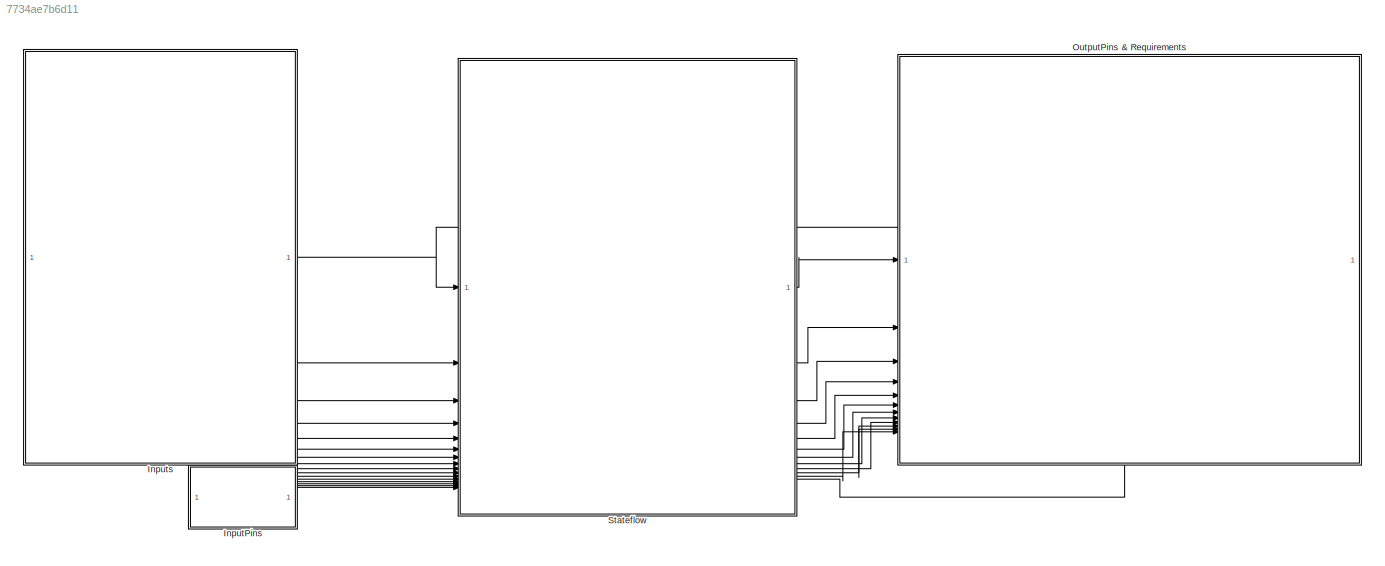
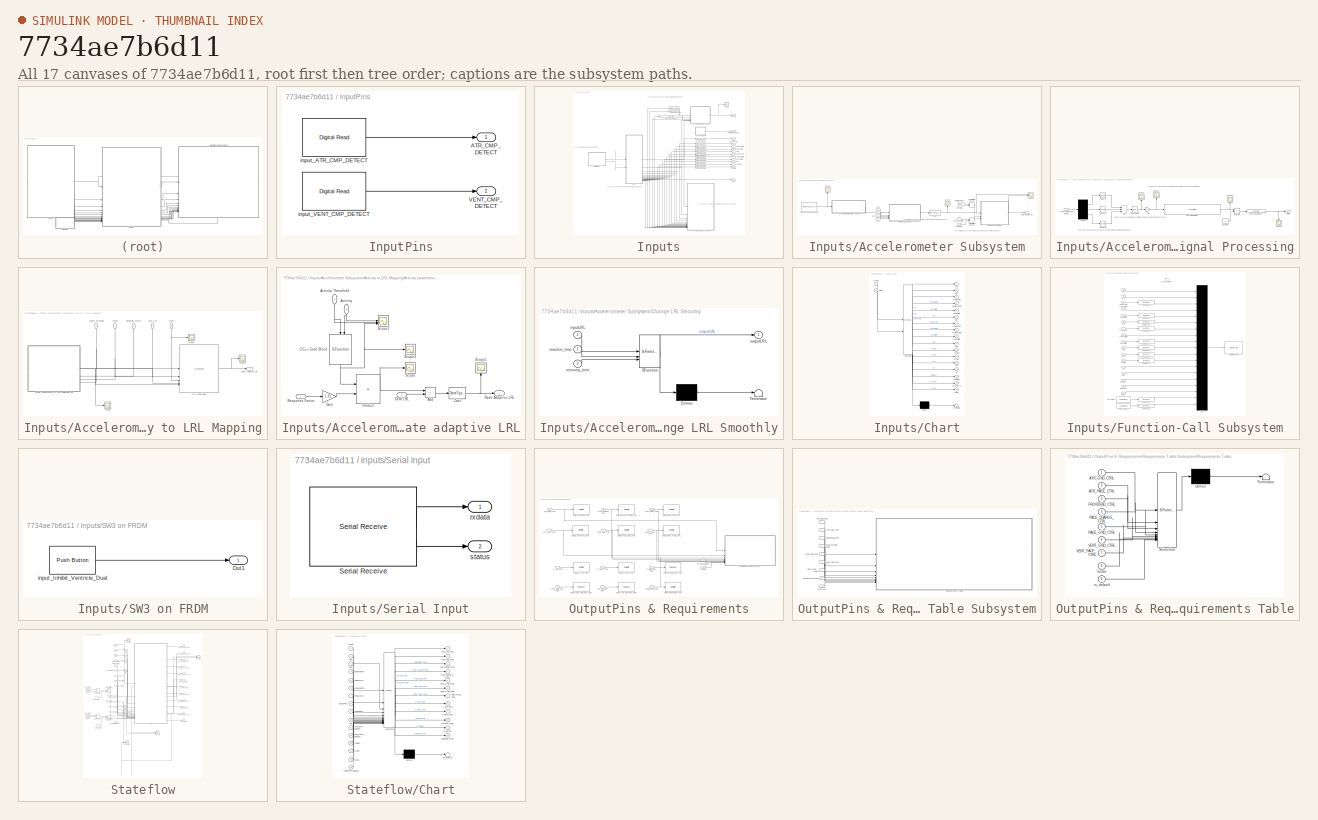
[diagram: thumbnail index - all 17 canvases of the model, root first then tree order]
MODEL slx_7734ae7b6d11
KIND model
CONFIG AbsTol = auto
CONFIG EnableMultiTasking = on
CONFIG FixedStep = 1e-3
CONFIG MaxStep = auto
CONFIG MinStep = auto
CONFIG RelTol = 1e-3
CONFIG SampleTimeConstraint = Unconstrained
CONFIG SolverName = FixedStepAuto
CONFIG StartTime = 0.0
CONFIG StopTime = 300
BLOCK [SubSystem] InputPins
BLOCK [Outport] InputPins/ATR_CMP_DETECT
  OutDataTypeStr = boolean
BLOCK [Outport] InputPins/VENT_CMP_DETECT
  OutDataTypeStr = boolean
  Port = 2
BLOCK [Reference] InputPins/input_ATR_CMP_DETECT  REF=frdmk64flib/Digital Read
  SourceBlock = frdmk64flib/Digital Read
  SourceType = freedomk64f.DigitalRead
BLOCK [Reference] InputPins/input_VENT_CMP_DETECT  REF=frdmk64flib/Digital Read
  SourceBlock = frdmk64flib/Digital Read
  SourceType = freedomk64f.DigitalRead
BLOCK [SubSystem] Inputs
BLOCK [Outport] Inputs/ARP
  NameLocation = right
  OutDataTypeStr = double
  Port = 2
  Unit = msec
BLOCK [Outport] Inputs/AVDelay
  NameLocation = right
  Port = 11
BLOCK [SubSystem] Inputs/Accelerometer Subsystem
BLOCK [Inport] Inputs/Accelerometer Subsystem/ATH
  NameLocation = left
  Port = 4
BLOCK [SubSystem] Inputs/Accelerometer Subsystem/Accelerometer Signal Processing
BLOCK [Inport] Inputs/Accelerometer Subsystem/Accelerometer Signal Processing/Accelerometer Raw Signal
BLOCK [Outport] Inputs/Accelerometer Subsystem/Accelerometer Signal Processing/Activity
BLOCK [Sum] Inputs/Accelerometer Subsystem/Accelerometer Signal Processing/Add
  IconShape = rectangular
  Inputs = +++
BLOCK [S-Function] Inputs/Accelerometer Subsystem/Accelerometer Signal Processing/C//C++ Code Block
  CopyFcn = set_param(gcbh,'LinkStatus','none')
  EnableBusSupport = off
  FunctionName = Group44MovingAverage
  OpenFcn = sfunctionwizard(gcbh)
  Parameters = uint16(500)
  SFcnIsStateOwnerBlock = off
  SFunctionDeploymentMode = off
  SFunctionModules = Group44MovingAverage_wrapper.c
BLOCK [S-Function] Inputs/Accelerometer Subsystem/Accelerometer Signal Processing/C//C++ Code Block1
  CopyFcn = set_param(gcbh,'LinkStatus','none')
  EnableBusSupport = off
  FunctionName = UnitRamp
  OpenFcn = sfunctionwizard(gcbh)
  SFcnIsStateOwnerBlock = off
  SFunctionDeploymentMode = off
  SFunctionModules = UnitRamp_wrapper.c
BLOCK [Constant] Inputs/Accelerometer Subsystem/Accelerometer Signal Processing/Constant
  OutDataTypeStr = uint8
  Value = 10
BLOCK [Demux] Inputs/Accelerometer Subsystem/Accelerometer Signal Processing/Demux
  DisplayOption = none
  Outputs = 3
BLOCK [Gain] Inputs/Accelerometer Subsystem/Accelerometer Signal Processing/Gain
  Gain = 10
BLOCK [Scope] Inputs/Accelerometer Subsystem/Accelerometer Signal Processing/Scope
  Floating = off
  NameLocation = left
  NumInputPorts = 1
  ScopeSpecificationString = Simulink.scopes.TimeScopeBlockCfg('CurrentConfiguration', extmgr.ConfigurationSet(extmgr.Configuration('Core','General UI',true),extmgr.Configuration('Core','Source UI',true),extmgr.Configuration('Sources','WiredSimulink',true,'DataLoggingVariableName','ScopeData1'),extmgr.Configuration('Visuals','Time Domain',true,'SerializedDisplays',{struct('MinYLimReal','-0.5','MaxYLimReal','4.5','YLabelReal',...<+1455ch>
BLOCK [Scope] Inputs/Accelerometer Subsystem/Accelerometer Signal Processing/Scope1
  Floating = off
  NameLocation = right
  NumInputPorts = 1
  ScopeSpecificationString = Simulink.scopes.TimeScopeBlockCfg('CurrentConfiguration', extmgr.ConfigurationSet(extmgr.Configuration('Core','General UI',true),extmgr.Configuration('Core','Source UI',true),extmgr.Configuration('Sources','WiredSimulink',true,'DataLoggingVariableName','ScopeData3'),extmgr.Configuration('Visuals','Time Domain',true,'SerializedDisplays',{struct('MinYLimReal','0.55156','MaxYLimReal','25.41147','YLab...<+1466ch>
BLOCK [Scope] Inputs/Accelerometer Subsystem/Accelerometer Signal Processing/Scope2
  Floating = off
  NameLocation = right
  NumInputPorts = 1
  ScopeSpecificationString = Simulink.scopes.TimeScopeBlockCfg('CurrentConfiguration', extmgr.ConfigurationSet(extmgr.Configuration('Core','General UI',true),extmgr.Configuration('Core','Source UI',true),extmgr.Configuration('Sources','WiredSimulink',true,'DataLoggingVariableName','ScopeData3'),extmgr.Configuration('Visuals','Time Domain',true,'SerializedDisplays',{struct('MinYLimReal','0.95882','MaxYLimReal','1.00514','YLabe...<+1521ch>
BLOCK [Scope] Inputs/Accelerometer Subsystem/Accelerometer Signal Processing/Scope4
  Floating = off
  NameLocation = right
  NumInputPorts = 1
  ScopeSpecificationString = Simulink.scopes.TimeScopeBlockCfg('CurrentConfiguration', extmgr.ConfigurationSet(extmgr.Configuration('Core','General UI',true),extmgr.Configuration('Core','Source UI',true),extmgr.Configuration('Sources','WiredSimulink',true,'DataLoggingVariableName','ScopeData1'),extmgr.Configuration('Visuals','Time Domain',true,'SerializedDisplays',{struct('MinYLimReal','-1.78243','MaxYLimReal','21.0123','YLab...<+1525ch>
BLOCK [Math] Inputs/Accelerometer Subsystem/Accelerometer Signal Processing/Square
  Operator = square
BLOCK [Sqrt] Inputs/Accelerometer Subsystem/Accelerometer Signal Processing/Square Root
BLOCK [Math] Inputs/Accelerometer Subsystem/Accelerometer Signal Processing/Square1
  Operator = square
BLOCK [Math] Inputs/Accelerometer Subsystem/Accelerometer Signal Processing/Square2
  Operator = square
BLOCK [Sum] Inputs/Accelerometer Subsystem/Accelerometer Signal Processing/Subtract
  IconShape = rectangular
  Inputs = +-
BLOCK [SubSystem] Inputs/Accelerometer Subsystem/Activity to LRL Mapping
BLOCK [Inport] Inputs/Accelerometer Subsystem/Activity to LRL Mapping/Activity
  NameLocation = top
BLOCK [Inport] Inputs/Accelerometer Subsystem/Activity to LRL Mapping/Activity Threshold
  NameLocation = top
  Port = 2
BLOCK [SubSystem] Inputs/Accelerometer Subsystem/Activity to LRL Mapping/Activity parameters to rate adaptive LRL
  NameLocation = top
  PortSchema = {"entries":[{"content":{"sides":[{"content":{"connectorIds":["Out1","In1","In2","In3","In4"]},"type":"ConnectorPlacement.EquallySpacedRectSide","uuid":"b899ee94-cb40-4d0b-acc5-da749b585c42"},{"content":{"connectorIds":[],"side":"RIGHT"},"type":"ConnectorPlacement.EquallySpacedRectSide","uuid":"1948e38a-14b1-4ace-8716-27014290e51a"},{"content":{"connectorIds":[],"side":"TOP"},"type":"ConnectorPlace...<+259ch>
BLOCK [Inport] Inputs/Accelerometer Subsystem/Activity to LRL Mapping/Activity parameters to rate adaptive LRL/Activity
  NameLocation = top
  Port = 3
BLOCK [Inport] Inputs/Accelerometer Subsystem/Activity to LRL Mapping/Activity parameters to rate adaptive LRL/Activity Threshold
  NameLocation = top
  Port = 4
BLOCK [Sum] Inputs/Accelerometer Subsystem/Activity to LRL Mapping/Activity parameters to rate adaptive LRL/Add
  IconShape = rectangular
BLOCK [S-Function] Inputs/Accelerometer Subsystem/Activity to LRL Mapping/Activity parameters to rate adaptive LRL/C//C++ Code Block
  CopyFcn = set_param(gcbh,'LinkStatus','none')
  EnableBusSupport = off
  FunctionName = ActivitySurplus
  NameLocation = left
  OpenFcn = sfunctionwizard(gcbh)
  SFcnIsStateOwnerBlock = off
  SFunctionDeploymentMode = off
  SFunctionModules = ActivitySurplus_wrapper.c
BLOCK [DataTypeConversion] Inputs/Accelerometer Subsystem/Activity to LRL Mapping/Activity parameters to rate adaptive LRL/Cast
  OutDataTypeStr = uint8
  RndMeth = Round
  SaturateOnIntegerOverflow = off
BLOCK [Inport] Inputs/Accelerometer Subsystem/Activity to LRL Mapping/Activity parameters to rate adaptive LRL/DCM LRL
BLOCK [Gain] Inputs/Accelerometer Subsystem/Activity to LRL Mapping/Activity parameters to rate adaptive LRL/Gain
  Gain = 1.25
BLOCK [Product] Inputs/Accelerometer Subsystem/Activity to LRL Mapping/Activity parameters to rate adaptive LRL/Product
BLOCK [Outport] Inputs/Accelerometer Subsystem/Activity to LRL Mapping/Activity parameters to rate adaptive LRL/Rade Adaptive LRL
BLOCK [Inport] Inputs/Accelerometer Subsystem/Activity to LRL Mapping/Activity parameters to rate adaptive LRL/Response Factor
  Port = 2
BLOCK [Scope] Inputs/Accelerometer Subsystem/Activity to LRL Mapping/Activity parameters to rate adaptive LRL/Scope
  Floating = off
  NumInputPorts = 1
  ScopeSpecificationString = Simulink.scopes.TimeScopeBlockCfg('CurrentConfiguration', extmgr.ConfigurationSet(extmgr.Configuration('Core','General UI',true),extmgr.Configuration('Core','Source UI',true),extmgr.Configuration('Sources','WiredSimulink',true,'DataLoggingVariableName','ScopeData3'),extmgr.Configuration('Visuals','Time Domain',true,'SerializedDisplays',{struct('MinYLimReal','-17.5','MaxYLimReal','157.5','YLabelRea...<+1440ch>
BLOCK [Scope] Inputs/Accelerometer Subsystem/Activity to LRL Mapping/Activity parameters to rate adaptive LRL/Scope1
  Floating = off
  NameLocation = right
  NumInputPorts = 1
  ScopeSpecificationString = Simulink.scopes.TimeScopeBlockCfg('CurrentConfiguration', extmgr.ConfigurationSet(extmgr.Configuration('Core','General UI',true),extmgr.Configuration('Core','Source UI',true),extmgr.Configuration('Sources','WiredSimulink',true,'DataLoggingVariableName','ScopeData4'),extmgr.Configuration('Visuals','Time Domain',true,'SerializedDisplays',{struct('MinYLimReal','79.26136','MaxYLimReal','120.30682','YL...<+1474ch>
BLOCK [Scope] Inputs/Accelerometer Subsystem/Activity to LRL Mapping/Activity parameters to rate adaptive LRL/Scope2
  Floating = off
  NumInputPorts = 3
  ScopeSpecificationString = Simulink.scopes.TimeScopeBlockCfg('CurrentConfiguration', extmgr.ConfigurationSet(extmgr.Configuration('Core','General UI',true),extmgr.Configuration('Core','Source UI',true),extmgr.Configuration('Sources','WiredSimulink',true,'DataLoggingVariableName','ScopeData5'),extmgr.Configuration('Visuals','Time Domain',true,'SerializedDisplays',{struct('MinYLimReal','-3.25','MaxYLimReal','29.25','YLabelRea...<+1545ch>
BLOCK [Scope] Inputs/Accelerometer Subsystem/Activity to LRL Mapping/Activity parameters to rate adaptive LRL/Scope3
  Floating = off
  NumInputPorts = 1
  ScopeSpecificationString = Simulink.scopes.TimeScopeBlockCfg('CurrentConfiguration', extmgr.ConfigurationSet(extmgr.Configuration('Core','General UI',true),extmgr.Configuration('Core','Source UI',true),extmgr.Configuration('Sources','WiredSimulink',true,'DataLoggingVariableName','ScopeData6'),extmgr.Configuration('Visuals','Time Domain',true,'SerializedDisplays',{struct('MinYLimReal','-1.00000','MaxYLimReal','1.00000','YLab...<+1430ch>
BLOCK [S-Function] Inputs/Accelerometer Subsystem/Activity to LRL Mapping/C//C++ Code Block
  CopyFcn = set_param(gcbh,'LinkStatus','none')
  EnableBusSupport = off
  FunctionName = Decision_Block
  OpenFcn = sfunctionwizard(gcbh)
  SFcnIsStateOwnerBlock = off
  SFunctionDeploymentMode = off
  SFunctionModules = Decision_Block_wrapper.c
BLOCK [Inport] Inputs/Accelerometer Subsystem/Activity to LRL Mapping/DCM LRL
  NameLocation = top
  Port = 4
BLOCK [Inport] Inputs/Accelerometer Subsystem/Activity to LRL Mapping/MSR
  NameLocation = top
  Port = 5
BLOCK [Outport] Inputs/Accelerometer Subsystem/Activity to LRL Mapping/Rate Adaptive LRL
BLOCK [Inport] Inputs/Accelerometer Subsystem/Activity to LRL Mapping/Response Factor
  NameLocation = top
  Port = 3
BLOCK [Scope] Inputs/Accelerometer Subsystem/Activity to LRL Mapping/Scope
  Floating = off
  NumInputPorts = 1
  ScopeSpecificationString = Simulink.scopes.TimeScopeBlockCfg('CurrentConfiguration', extmgr.ConfigurationSet(extmgr.Configuration('Core','General UI',true),extmgr.Configuration('Core','Source UI',true),extmgr.Configuration('Sources','WiredSimulink',true,'DataLoggingVariableName','ScopeData1'),extmgr.Configuration('Visuals','Time Domain',true,'SerializedDisplays',{struct('MinYLimReal','4.00000','MaxYLimReal','244.00000','YLa...<+1506ch>
BLOCK [Scope] Inputs/Accelerometer Subsystem/Activity to LRL Mapping/Scope1
  Floating = off
  NumInputPorts = 1
  ScopeSpecificationString = Simulink.scopes.TimeScopeBlockCfg('CurrentConfiguration', extmgr.ConfigurationSet(extmgr.Configuration('Core','General UI',true),extmgr.Configuration('Core','Source UI',true),extmgr.Configuration('Sources','WiredSimulink',true,'DataLoggingVariableName','ScopeData2'),extmgr.Configuration('Visuals','Time Domain',true,'SerializedDisplays',{struct('MinYLimReal','80.00000','MaxYLimReal','280.00000','YL...<+1435ch>
BLOCK [Scope] Inputs/Accelerometer Subsystem/Activity to LRL Mapping/Scope3
  Floating = off
  NumInputPorts = 1
  ScopeSpecificationString = Simulink.scopes.TimeScopeBlockCfg('CurrentConfiguration', extmgr.ConfigurationSet(extmgr.Configuration('Core','General UI',true),extmgr.Configuration('Core','Source UI',true),extmgr.Configuration('Sources','WiredSimulink',true,'DataLoggingVariableName','ScopeData7'),extmgr.Configuration('Visuals','Time Domain',true,'SerializedDisplays',{struct('MinYLimReal','-11.46197','MaxYLimReal','195.89398','Y...<+1511ch>
BLOCK [DataTypeConversion] Inputs/Accelerometer Subsystem/Cast
  OutDataTypeStr = double
  RndMeth = Floor
  SaturateOnIntegerOverflow = off
BLOCK [SubSystem] Inputs/Accelerometer Subsystem/Change LRL Smoothly
  ErrorFcn = Stateflow.Translate.translate
  PermitHierarchicalResolution = ExplicitOnly
  PortSchema = {"entries":[{"content":{"sides":[{"content":{"connectorIds":["In2","In1","In3"]},"type":"ConnectorPlacement.EquallySpacedRectSide","uuid":"85af1beb-61ae-4766-b408-8225321ec4a4"},{"content":{"connectorIds":["Out1"],"side":"RIGHT"},"type":"ConnectorPlacement.EquallySpacedRectSide","uuid":"bdf3d147-5894-49ca-bdec-54ebdf64bfa8"},{"content":{"connectorIds":[],"side":"TOP"},"type":"ConnectorPlacement.Eq...<+396ch>
  SFBlockType = Chart
  TreatAsAtomicUnit = on
BLOCK [Demux] Inputs/Accelerometer Subsystem/Change LRL Smoothly/ Demux 
  Outputs = 1
BLOCK [S-Function] Inputs/Accelerometer Subsystem/Change LRL Smoothly/ SFunction 
  EnableBusSupport = on
  FunctionName = sf_sfun
  PortCounts = [3 2]
  SFcnIsStateOwnerBlock = off
  SFunctionDeploymentMode = off
  Tag = Stateflow S-Function 3
BLOCK [Terminator] Inputs/Accelerometer Subsystem/Change LRL Smoothly/ Terminator 
BLOCK [Inport] Inputs/Accelerometer Subsystem/Change LRL Smoothly/inputLRL
BLOCK [Outport] Inputs/Accelerometer Subsystem/Change LRL Smoothly/outputLRL
BLOCK [Inport] Inputs/Accelerometer Subsystem/Change LRL Smoothly/reaction_time
  Port = 2
BLOCK [Inport] Inputs/Accelerometer Subsystem/Change LRL Smoothly/recovery_time
  Port = 3
BLOCK [Constant] Inputs/Accelerometer Subsystem/Constant
  SampleTime = -1
  Value = 4
BLOCK [Constant] Inputs/Accelerometer Subsystem/Constant1
  SampleTime = -1
  Value = 4
BLOCK [Product] Inputs/Accelerometer Subsystem/Correct timing issues
  Inputs = */
BLOCK [Product] Inputs/Accelerometer Subsystem/Correct timing issues1
  Inputs = */
  NameLocation = top
BLOCK [Reference] Inputs/Accelerometer Subsystem/FXOS8700 6-Axes Sensor1  REF=frdmk64flib/FXOS8700 6-Axes Sensor
  SourceBlock = frdmk64flib/FXOS8700 6-Axes Sensor
  SourceType = freedomk64f.fxos8700
BLOCK [Inport] Inputs/Accelerometer Subsystem/LRL
  NameLocation = left
  Port = 6
BLOCK [Inport] Inputs/Accelerometer Subsystem/MSR
  NameLocation = left
  Port = 5
BLOCK [Inport] Inputs/Accelerometer Subsystem/RF
  NameLocation = left
  Port = 3
BLOCK [Outport] Inputs/Accelerometer Subsystem/Rate Adaptive LRL
BLOCK [Scope] Inputs/Accelerometer Subsystem/Scope
  Floating = off
  NumInputPorts = 2
  ScopeSpecificationString = Simulink.scopes.TimeScopeBlockCfg('CurrentConfiguration', extmgr.ConfigurationSet(extmgr.Configuration('Core','General UI',true),extmgr.Configuration('Core','Source UI',true),extmgr.Configuration('Sources','WiredSimulink',true,'DataLoggingVariableName','ScopeData1'),extmgr.Configuration('Visuals','Time Domain',true,'SerializedDisplays',{struct('MinYLimReal','52.5','MaxYLimReal','127.5','YLabelReal...<+1478ch>
BLOCK [Scope] Inputs/Accelerometer Subsystem/Scope1
  Floating = off
  NameLocation = right
  NumInputPorts = 1
  ScopeSpecificationString = Simulink.scopes.TimeScopeBlockCfg('CurrentConfiguration', extmgr.ConfigurationSet(extmgr.Configuration('Core','General UI',true),extmgr.Configuration('Core','Source UI',true),extmgr.Configuration('Sources','WiredSimulink',true,'DataLoggingVariableName','ScopeData1'),extmgr.Configuration('Visuals','Time Domain',true,'SerializedDisplays',{struct('MinYLimReal','-1.00000','MaxYLimReal','1.00000','YLab...<+1541ch>
BLOCK [Scope] Inputs/Accelerometer Subsystem/Scope2
  Floating = off
  NameLocation = top
  NumInputPorts = 1
  ScopeSpecificationString = Simulink.scopes.TimeScopeBlockCfg('CurrentConfiguration', extmgr.ConfigurationSet(extmgr.Configuration('Core','General UI',true),extmgr.Configuration('Core','Source UI',true),extmgr.Configuration('Sources','WiredSimulink',true,'DataLoggingVariableName','ScopeData3'),extmgr.Configuration('Visuals','Time Domain',true,'SerializedDisplays',{struct('MinYLimReal','78.75','MaxYLimReal','191.25','YLabelRe...<+1437ch>
BLOCK [Inport] Inputs/Accelerometer Subsystem/reactionT(sec)
  NameLocation = top
  Port = 2
BLOCK [Inport] Inputs/Accelerometer Subsystem/recoveryT(min)
BLOCK [S-Function] Inputs/C//C++ Code Block
  CopyFcn = set_param(gcbh,'LinkStatus','none')
  EnableBusSupport = off
  FunctionName = ConvertToScale
  OpenFcn = sfunctionwizard(gcbh)
  SFcnIsStateOwnerBlock = off
  SFunctionDeploymentMode = off
  SFunctionModules = ConvertToScale_wrapper.c
BLOCK [DataTypeConversion] Inputs/Cast To Double
  OutDataTypeStr = double
  RndMeth = Floor
  SaturateOnIntegerOverflow = off
BLOCK [DataTypeConversion] Inputs/Cast To Double1
  OutDataTypeStr = double
  RndMeth = Floor
  SaturateOnIntegerOverflow = off
BLOCK [DataTypeConversion] Inputs/Cast To Double10
  OutDataTypeStr = double
  RndMeth = Floor
  SaturateOnIntegerOverflow = off
BLOCK [DataTypeConversion] Inputs/Cast To Double11
  OutDataTypeStr = double
  RndMeth = Floor
  SaturateOnIntegerOverflow = off
BLOCK [DataTypeConversion] Inputs/Cast To Double12
  OutDataTypeStr = double
  RndMeth = Floor
  SaturateOnIntegerOverflow = off
BLOCK [DataTypeConversion] Inputs/Cast To Double2
  OutDataTypeStr = double
  RndMeth = Floor
  SaturateOnIntegerOverflow = off
BLOCK [DataTypeConversion] Inputs/Cast To Double3
  OutDataTypeStr = double
  RndMeth = Floor
  SaturateOnIntegerOverflow = off
BLOCK [DataTypeConversion] Inputs/Cast To Double4
  OutDataTypeStr = double
  RndMeth = Floor
  SaturateOnIntegerOverflow = off
BLOCK [DataTypeConversion] Inputs/Cast To Double5
  OutDataTypeStr = double
  RndMeth = Floor
  SaturateOnIntegerOverflow = off
BLOCK [DataTypeConversion] Inputs/Cast To Double6
  OutDataTypeStr = double
  RndMeth = Floor
  SaturateOnIntegerOverflow = off
BLOCK [DataTypeConversion] Inputs/Cast To Double7
  OutDataTypeStr = double
  RndMeth = Floor
  SaturateOnIntegerOverflow = off
BLOCK [DataTypeConversion] Inputs/Cast To Double8
  OutDataTypeStr = double
  RndMeth = Floor
  SaturateOnIntegerOverflow = off
BLOCK [DataTypeConversion] Inputs/Cast To Double9
  OutDataTypeStr = double
  RndMeth = Floor
  SaturateOnIntegerOverflow = off
BLOCK [SubSystem] Inputs/Chart
  ErrorFcn = Stateflow.Translate.translate
  PermitHierarchicalResolution = ExplicitOnly
  SFBlockType = Chart
  TreatAsAtomicUnit = on
BLOCK [Demux] Inputs/Chart/ Demux 
  Outputs = 1
BLOCK [S-Function] Inputs/Chart/ SFunction 
  EnableBusSupport = on
  FunctionName = sf_sfun
  PortCounts = [2 18]
  SFcnIsStateOwnerBlock = off
  SFunctionDeploymentMode = off
  Tag = Stateflow S-Function 2
BLOCK [Terminator] Inputs/Chart/ Terminator 
BLOCK [Outport] Inputs/Chart/ARP
  Port = 6
BLOCK [Outport] Inputs/Chart/ATH
  Port = 13
BLOCK [Outport] Inputs/Chart/AVDelay
  Port = 11
BLOCK [Outport] Inputs/Chart/LRL
BLOCK [Outport] Inputs/Chart/MSR
  Port = 2
BLOCK [Outport] Inputs/Chart/PVARP
  Port = 12
BLOCK [Outport] Inputs/Chart/RF
  Port = 14
BLOCK [Outport] Inputs/Chart/VRP
  Port = 10
BLOCK [Outport] Inputs/Chart/aPulseAmp
  Port = 3
BLOCK [Outport] Inputs/Chart/aPulseWidth
  Port = 4
BLOCK [Outport] Inputs/Chart/aSensitivity
  Port = 5
BLOCK [Outport] Inputs/Chart/mode
  Port = 17
BLOCK [Outport] Inputs/Chart/reactionT
  Port = 15
BLOCK [Outport] Inputs/Chart/recoveryT
  Port = 16
BLOCK [Inport] Inputs/Chart/rxdata
BLOCK [Inport] Inputs/Chart/status
  Port = 2
BLOCK [Outport] Inputs/Chart/vPulseAmp
  Port = 7
BLOCK [Outport] Inputs/Chart/vPulseWidth
  Port = 8
BLOCK [Outport] Inputs/Chart/vSensitivity
  Port = 9
BLOCK [SubSystem] Inputs/Function-Call Subsystem
  TreatAsAtomicUnit = on
BLOCK [Inport] Inputs/Function-Call Subsystem/ARP
  Port = 6
BLOCK [Inport] Inputs/Function-Call Subsystem/ATH
  Port = 13
BLOCK [Reference] Inputs/Function-Call Subsystem/ATR_SIGNAL  REF=frdmk64flib/Analog Input
  NameLocation = left
  SourceBlock = frdmk64flib/Analog Input
  SourceType = freedomk64f.AnalogInput
BLOCK [Inport] Inputs/Function-Call Subsystem/AVDelay
  Port = 11
BLOCK [Reference] Inputs/Function-Call Subsystem/Byte Pack  REF=etargetslib/Byte Pack
  LibrarySourceBlock = embeddedtargetslib/Host Communication/Byte Pack
  SourceBlock = etargetslib/Byte Pack
  SourceType = Byte pack
BLOCK [Reference] Inputs/Function-Call Subsystem/Byte Pack1  REF=etargetslib/Byte Pack
  LibrarySourceBlock = embeddedtargetslib/Host Communication/Byte Pack
  SourceBlock = etargetslib/Byte Pack
  SourceType = Byte pack
BLOCK [Reference] Inputs/Function-Call Subsystem/Byte Pack2  REF=etargetslib/Byte Pack
  LibrarySourceBlock = embeddedtargetslib/Host Communication/Byte Pack
  SourceBlock = etargetslib/Byte Pack
  SourceType = Byte pack
BLOCK [Reference] Inputs/Function-Call Subsystem/Byte Pack3  REF=etargetslib/Byte Pack
  LibrarySourceBlock = embeddedtargetslib/Host Communication/Byte Pack
  SourceBlock = etargetslib/Byte Pack
  SourceType = Byte pack
BLOCK [Reference] Inputs/Function-Call Subsystem/Byte Pack4  REF=etargetslib/Byte Pack
  LibrarySourceBlock = embeddedtargetslib/Host Communication/Byte Pack
  SourceBlock = etargetslib/Byte Pack
  SourceType = Byte pack
BLOCK [Reference] Inputs/Function-Call Subsystem/Byte Pack5  REF=etargetslib/Byte Pack
  LibrarySourceBlock = embeddedtargetslib/Host Communication/Byte Pack
  SourceBlock = etargetslib/Byte Pack
  SourceType = Byte pack
BLOCK [Reference] Inputs/Function-Call Subsystem/Byte Pack6  REF=etargetslib/Byte Pack
  LibrarySourceBlock = embeddedtargetslib/Host Communication/Byte Pack
  SourceBlock = etargetslib/Byte Pack
  SourceType = Byte pack
BLOCK [Reference] Inputs/Function-Call Subsystem/Byte Pack7  REF=etargetslib/Byte Pack
  LibrarySourceBlock = embeddedtargetslib/Host Communication/Byte Pack
  SourceBlock = etargetslib/Byte Pack
  SourceType = Byte pack
BLOCK [Reference] Inputs/Function-Call Subsystem/Byte Pack8  REF=etargetslib/Byte Pack
  LibrarySourceBlock = embeddedtargetslib/Host Communication/Byte Pack
  SourceBlock = etargetslib/Byte Pack
  SourceType = Byte pack
BLOCK [Reference] Inputs/Function-Call Subsystem/Byte Pack9  REF=etargetslib/Byte Pack
  LibrarySourceBlock = embeddedtargetslib/Host Communication/Byte Pack
  SourceBlock = etargetslib/Byte Pack
  SourceType = Byte pack
BLOCK [Inport] Inputs/Function-Call Subsystem/LRL
BLOCK [Inport] Inputs/Function-Call Subsystem/MSR
  Port = 2
BLOCK [Mux] Inputs/Function-Call Subsystem/Mux
  DisplayOption = signals
  Inputs = 19
BLOCK [Inport] Inputs/Function-Call Subsystem/PVARP
  Port = 12
BLOCK [Inport] Inputs/Function-Call Subsystem/RF
  Port = 14
BLOCK [Reference] Inputs/Function-Call Subsystem/Serial Transmit  REF=frdmk64flib/Serial Transmit
  SourceBlock = frdmk64flib/Serial Transmit
  SourceType = freedomk64f.SCIWrite
BLOCK [Reference] Inputs/Function-Call Subsystem/VENT_SIGNAL  REF=frdmk64flib/Analog Input
  NameLocation = left
  SourceBlock = frdmk64flib/Analog Input
  SourceType = freedomk64f.AnalogInput
BLOCK [Inport] Inputs/Function-Call Subsystem/VRP
  Port = 10
BLOCK [Inport] Inputs/Function-Call Subsystem/aPulseAmp
  Port = 3
BLOCK [Inport] Inputs/Function-Call Subsystem/aPulseWidth
  Port = 4
BLOCK [Inport] Inputs/Function-Call Subsystem/aSensitivity
  Port = 5
BLOCK [Inport] Inputs/Function-Call Subsystem/mode
  Port = 17
BLOCK [Inport] Inputs/Function-Call Subsystem/reactionT
  Port = 15
BLOCK [Inport] Inputs/Function-Call Subsystem/recoveryT
  Port = 16
BLOCK [TriggerPort] Inputs/Function-Call Subsystem/send_params
  FunctionName = send_params
  IsSimulinkFunction = on
  StatesWhenEnabling = held
  TriggerType = function-call
  VariantControl = (inherit)
BLOCK [Inport] Inputs/Function-Call Subsystem/vPulseAmp
  Port = 7
BLOCK [Inport] Inputs/Function-Call Subsystem/vPulseWidth
  Port = 8
BLOCK [Inport] Inputs/Function-Call Subsystem/vSensitivity
  Port = 9
BLOCK [Outport] Inputs/InhibitVentricleDual
  Port = 14
BLOCK [Outport] Inputs/LRL
  NameLocation = right
  OutDataTypeStr = double
  Port = 10
  Unit = msec
BLOCK [Outport] Inputs/PVARP
  NameLocation = right
  Port = 12
BLOCK [Outport] Inputs/RALRL
  NameLocation = right
  Port = 13
BLOCK [SubSystem] Inputs/SW3 on FRDM
BLOCK [Outport] Inputs/SW3 on FRDM/Out1
BLOCK [Reference] Inputs/SW3 on FRDM/input_Inhibit_Ventricle_Dual  REF=frdmk64flib/Push Button
  SourceBlock = frdmk64flib/Push Button
  SourceType = freedomk64f.PushButton
BLOCK [Scope] Inputs/Scope
  Floating = off
  NumInputPorts = 1
  ScopeSpecificationString = Simulink.scopes.TimeScopeBlockCfg('CurrentConfiguration', extmgr.ConfigurationSet(extmgr.Configuration('Core','General UI',true),extmgr.Configuration('Core','Source UI',true),extmgr.Configuration('Sources','WiredSimulink',true,'DataLoggingVariableName','ScopeData1'),extmgr.Configuration('Visuals','Time Domain',true,'SerializedDisplays',{struct('MinYLimReal','50.00000','MaxYLimReal','70.00000','YLa...<+1388ch>
BLOCK [SubSystem] Inputs/Serial Input
BLOCK [Reference] Inputs/Serial Input/Serial Receive  REF=frdmk64flib/Serial Receive
  SourceBlock = frdmk64flib/Serial Receive
  SourceType = freedomk64f.SCIRead
BLOCK [Outport] Inputs/Serial Input/rxdata
  NameLocation = right
BLOCK [Outport] Inputs/Serial Input/status
  Port = 2
BLOCK [Outport] Inputs/VRP
  NameLocation = right
  OutDataTypeStr = double
  Port = 3
  Unit = msec
BLOCK [Outport] Inputs/aPulseAmp
  NameLocation = right
  OutDataTypeStr = double
  Port = 5
  Unit = V
BLOCK [Outport] Inputs/aPulseWidth
  NameLocation = right
  OutDataTypeStr = double
  Port = 4
  Unit = msec
BLOCK [Outport] Inputs/aSensitivity
  NameLocation = right
  OutDataTypeStr = double
  Port = 8
  Unit = V
BLOCK [Outport] Inputs/mode
  NameLocation = right
  OutDataTypeStr = uint8
BLOCK [Outport] Inputs/vPulseAmp
  NameLocation = right
  OutDataTypeStr = double
  Port = 7
  Unit = V
BLOCK [Outport] Inputs/vPulseWidth
  NameLocation = right
  OutDataTypeStr = double
  Port = 6
  Unit = msec
BLOCK [Outport] Inputs/vSensitivity
  NameLocation = right
  OutDataTypeStr = double
  Port = 9
  Unit = V
BLOCK [SubSystem] OutputPins & Requirements
  PortSchema = {"entries":[{"content":{"sides":[{"content":{"connectorIds":["In1","In2","In3","In4","In5","In6","In7","In8","In9","In10","In11","In12"]},"type":"ConnectorPlacement.EquallySpacedRectSide","uuid":"f209b0ac-f79a-4701-a17d-e6e4657793a5"},{"content":{"connectorIds":[],"side":"RIGHT"},"type":"ConnectorPlacement.EquallySpacedRectSide","uuid":"7d13a426-91e0-4712-bb01-5d8563f6962a"},{"content":{"connector...<+459ch>
BLOCK [Inport] OutputPins & Requirements/ATR_CMP_REF_PWM
  OutDataTypeStr = double
  Port = 11
BLOCK [Inport] OutputPins & Requirements/ATR_GND_CTRL
  OutDataTypeStr = boolean
BLOCK [Inport] OutputPins & Requirements/ATR_PACE_CTRL
  OutDataTypeStr = boolean
  Port = 2
BLOCK [Inport] OutputPins & Requirements/FRONTEND_CTRL
  OutDataTypeStr = boolean
  Port = 12
BLOCK [Reference] OutputPins & Requirements/Output_ATR_CMP_REF_PWM  REF=frdmk64flib/PWM Output
  SourceBlock = frdmk64flib/PWM Output
  SourceType = freedomk64f.PWMOutput
BLOCK [Reference] OutputPins & Requirements/Output_ATR_GND_CTRL  REF=frdmk64flib/Digital Write
  SourceBlock = frdmk64flib/Digital Write
  SourceType = freedomk64f.DigitalWrite
BLOCK [Reference] OutputPins & Requirements/Output_ATR_PACE_CTRL  REF=frdmk64flib/Digital Write
  SourceBlock = frdmk64flib/Digital Write
  SourceType = freedomk64f.DigitalWrite
BLOCK [Reference] OutputPins & Requirements/Output_FRONTEND_CTRL  REF=frdmk64flib/Digital Write
  SourceBlock = frdmk64flib/Digital Write
  SourceType = freedomk64f.DigitalWrite
BLOCK [Reference] OutputPins & Requirements/Output_PACE_CHARGE_CTRL  REF=frdmk64flib/Digital Write
  SourceBlock = frdmk64flib/Digital Write
  SourceType = freedomk64f.DigitalWrite
BLOCK [Reference] OutputPins & Requirements/Output_PACE_GND_CTRL  REF=frdmk64flib/Digital Write
  SourceBlock = frdmk64flib/Digital Write
  SourceType = freedomk64f.DigitalWrite
BLOCK [Reference] OutputPins & Requirements/Output_PACING_REF_PWM  REF=frdmk64flib/PWM Output
  SourceBlock = frdmk64flib/PWM Output
  SourceType = freedomk64f.PWMOutput
BLOCK [Reference] OutputPins & Requirements/Output_VENT_CMP_REF_PWM  REF=frdmk64flib/PWM Output
  SourceBlock = frdmk64flib/PWM Output
  SourceType = freedomk64f.PWMOutput
BLOCK [Reference] OutputPins & Requirements/Output_VENT_GND_CTRL  REF=frdmk64flib/Digital Write
  SourceBlock = frdmk64flib/Digital Write
  SourceType = freedomk64f.DigitalWrite
BLOCK [Reference] OutputPins & Requirements/Output_VENT_PACE_CTRL  REF=frdmk64flib/Digital Write
  SourceBlock = frdmk64flib/Digital Write
  SourceType = freedomk64f.DigitalWrite
BLOCK [Reference] OutputPins & Requirements/Output_Z_ATR_CTRL  REF=frdmk64flib/Digital Write
  SourceBlock = frdmk64flib/Digital Write
  SourceType = freedomk64f.DigitalWrite
BLOCK [Reference] OutputPins & Requirements/Output_Z_VENT_CTRL  REF=frdmk64flib/Digital Write
  SourceBlock = frdmk64flib/Digital Write
  SourceType = freedomk64f.DigitalWrite
BLOCK [Inport] OutputPins & Requirements/PACE_CHARGE_CTRL
  OutDataTypeStr = boolean
  Port = 3
BLOCK [Inport] OutputPins & Requirements/PACE_GND_CTRL
  OutDataTypeStr = boolean
  Port = 4
BLOCK [Inport] OutputPins & Requirements/PACING_REF_PWM
  OutDataTypeStr = double
  Port = 9
BLOCK [Inport] OutputPins & Requirements/PaceMakerMode
  OutDataTypeStr = uint8
  Port = 13
BLOCK [SubSystem] OutputPins & Requirements/Requirements Table Subsystem
BLOCK [Inport] OutputPins & Requirements/Requirements Table Subsystem/ATR_GND_CTRL
  OutDataTypeStr = boolean
BLOCK [Inport] OutputPins & Requirements/Requirements Table Subsystem/ATR_PACE_CTRL
  OutDataTypeStr = boolean
  Port = 2
BLOCK [Inport] OutputPins & Requirements/Requirements Table Subsystem/FRONTEND_CTRL
  OutDataTypeStr = boolean
  Port = 7
BLOCK [Inport] OutputPins & Requirements/Requirements Table Subsystem/PACE_CHARGE_CTRL
  OutDataTypeStr = boolean
  Port = 3
BLOCK [Inport] OutputPins & Requirements/Requirements Table Subsystem/PACE_GND_CTRL
  OutDataTypeStr = boolean
  Port = 4
BLOCK [Inport] OutputPins & Requirements/Requirements Table Subsystem/PaceMakerMode
  OutDataTypeStr = uint8
  Port = 8
BLOCK [SubSystem] OutputPins & Requirements/Requirements Table Subsystem/Requirements Table
  Commented = on
  ErrorFcn = Stateflow.Translate.translate
  PermitHierarchicalResolution = ExplicitOnly
  SFBlockType = Requirements Table
  TreatAsAtomicUnit = on
BLOCK [Demux] OutputPins & Requirements/Requirements Table Subsystem/Requirements Table/ Demux 
  Outputs = 1
BLOCK [S-Function] OutputPins & Requirements/Requirements Table Subsystem/Requirements Table/ SFunction 
  EnableBusSupport = on
  FunctionName = sf_sfun
  PortCounts = [9 1]
  SFcnIsStateOwnerBlock = off
  SFunctionDeploymentMode = off
  Tag = Stateflow S-Function 1
BLOCK [Terminator] OutputPins & Requirements/Requirements Table Subsystem/Requirements Table/ Terminator 
BLOCK [Inport] OutputPins & Requirements/Requirements Table Subsystem/Requirements Table/ATR_GND_CTRL
BLOCK [Inport] OutputPins & Requirements/Requirements Table Subsystem/Requirements Table/ATR_PACE_CTRL
  Port = 2
BLOCK [Inport] OutputPins & Requirements/Requirements Table Subsystem/Requirements Table/FRONTEND_CTRL
  Port = 3
BLOCK [Inport] OutputPins & Requirements/Requirements Table Subsystem/Requirements Table/PACE_CHARGE_CTRL
  Port = 4
BLOCK [Inport] OutputPins & Requirements/Requirements Table Subsystem/Requirements Table/PACE_GND_CTRL
  Port = 5
BLOCK [Inport] OutputPins & Requirements/Requirements Table Subsystem/Requirements Table/VENT_GND_CTRL
  Port = 6
BLOCK [Inport] OutputPins & Requirements/Requirements Table Subsystem/Requirements Table/VENT_PACE_CTRL
  Port = 7
BLOCK [Inport] OutputPins & Requirements/Requirements Table Subsystem/Requirements Table/in_default
  Port = 9
BLOCK [Inport] OutputPins & Requirements/Requirements Table Subsystem/Requirements Table/mode
  Port = 8
BLOCK [Inport] OutputPins & Requirements/Requirements Table Subsystem/VENT_GND_CTRL
  OutDataTypeStr = boolean
  Port = 5
BLOCK [Inport] OutputPins & Requirements/Requirements Table Subsystem/VENT_PACE_CTRL
  OutDataTypeStr = boolean
  Port = 6
BLOCK [Inport] OutputPins & Requirements/Requirements Table Subsystem/in_default
  OutDataTypeStr = boolean
  Port = 9
BLOCK [Inport] OutputPins & Requirements/VENT_CMP_REF_PWM
  OutDataTypeStr = double
  Port = 10
BLOCK [Inport] OutputPins & Requirements/VENT_GND_CTRL
  OutDataTypeStr = boolean
  Port = 5
BLOCK [Inport] OutputPins & Requirements/VENT_PACE_CTRL
  OutDataTypeStr = boolean
  Port = 6
BLOCK [Inport] OutputPins & Requirements/Z_ATR_CTRL
  OutDataTypeStr = boolean
  Port = 7
BLOCK [Inport] OutputPins & Requirements/Z_VENT_CTRL
  OutDataTypeStr = boolean
  Port = 8
BLOCK [Inport] OutputPins & Requirements/in_default
  OutDataTypeStr = boolean
  Port = 14
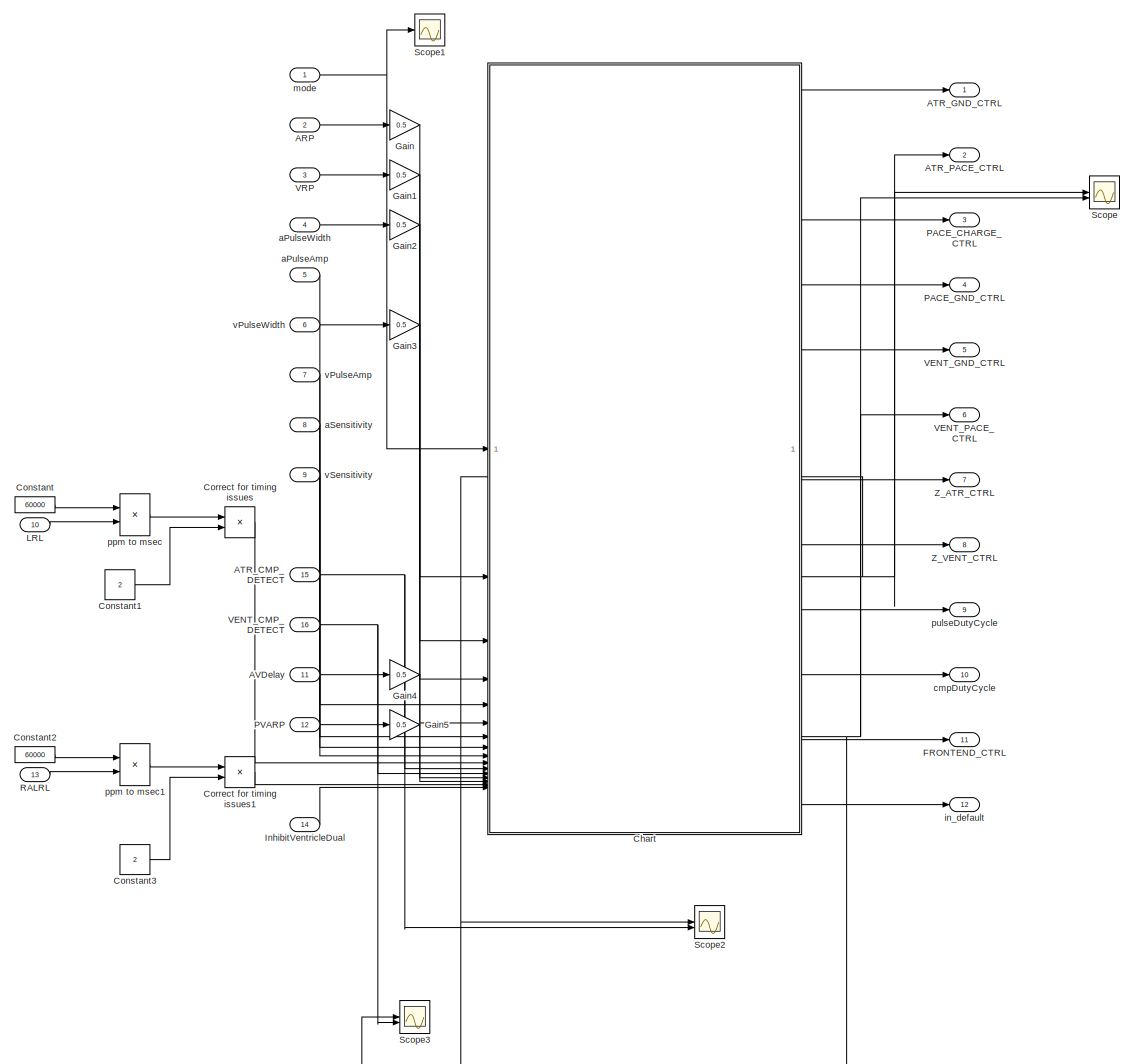
[diagram: Stateflow - part 1/1, most of the canvas]
BLOCK [SubSystem] Stateflow
BLOCK [Inport] Stateflow/ARP
  OutDataTypeStr = double
  Port = 2
  Unit = msec
BLOCK [Inport] Stateflow/ATR_CMP_DETECT
  OutDataTypeStr = boolean
  Port = 15
BLOCK [Outport] Stateflow/ATR_GND_CTRL
  OutDataTypeStr = boolean
BLOCK [Outport] Stateflow/ATR_PACE_CTRL
  OutDataTypeStr = boolean
  Port = 2
BLOCK [Inport] Stateflow/AVDelay
  Port = 11
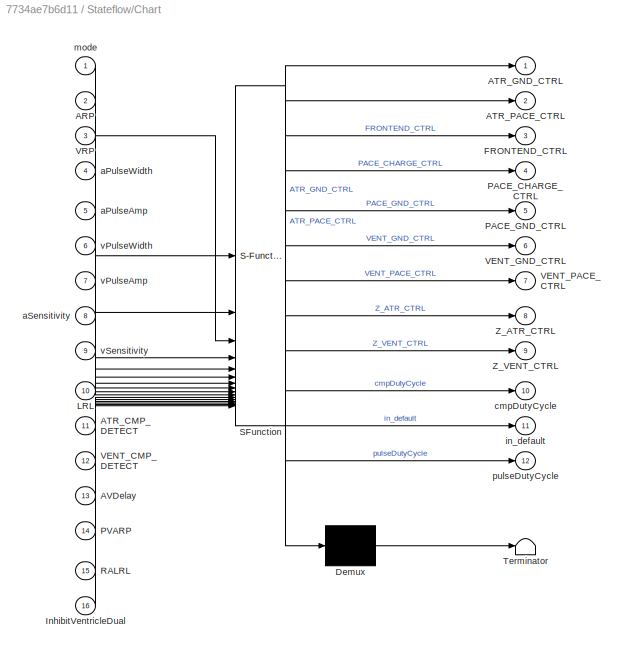
BLOCK [SubSystem] Stateflow/Chart
  ErrorFcn = Stateflow.Translate.translate
  PermitHierarchicalResolution = ExplicitOnly
  PortSchema = {"entries":[{"content":{"sides":[{"content":{"connectorIds":["In1","In2","In3","In4","In5","In6","In7","In8","In9","In10","In11","In12","In13","In14","In15","In16"]},"type":"ConnectorPlacement.EquallySpacedRectSide","uuid":"859ad6b1-f88a-4c7a-b788-dab0771a046c"},{"content":{"connectorIds":["Out1","Out2","Out4","Out5","Out6","Out7","Out8","Out9","Out12","Out10","Out3","Out11"],"side":"RIGHT"},"type...<+417ch>
  SFBlockType = Chart
  TreatAsAtomicUnit = on
BLOCK [Demux] Stateflow/Chart/ Demux 
  Outputs = 1
BLOCK [S-Function] Stateflow/Chart/ SFunction 
  EnableBusSupport = on
  FunctionName = sf_sfun
  PortCounts = [16 13]
  SFcnIsStateOwnerBlock = off
  SFunctionDeploymentMode = off
  Tag = Stateflow S-Function 6
BLOCK [Terminator] Stateflow/Chart/ Terminator 
BLOCK [Inport] Stateflow/Chart/ARP
  Port = 2
BLOCK [Inport] Stateflow/Chart/ATR_CMP_DETECT
  Port = 11
BLOCK [Outport] Stateflow/Chart/ATR_GND_CTRL
BLOCK [Outport] Stateflow/Chart/ATR_PACE_CTRL
  Port = 2
BLOCK [Inport] Stateflow/Chart/AVDelay
  Port = 13
BLOCK [Outport] Stateflow/Chart/FRONTEND_CTRL
  Port = 3
BLOCK [Inport] Stateflow/Chart/InhibitVentricleDual
  Port = 16
BLOCK [Inport] Stateflow/Chart/LRL
  Port = 10
BLOCK [Outport] Stateflow/Chart/PACE_CHARGE_CTRL
  Port = 4
BLOCK [Outport] Stateflow/Chart/PACE_GND_CTRL
  Port = 5
BLOCK [Inport] Stateflow/Chart/PVARP
  Port = 14
BLOCK [Inport] Stateflow/Chart/RALRL
  Port = 15
BLOCK [Inport] Stateflow/Chart/VENT_CMP_DETECT
  Port = 12
BLOCK [Outport] Stateflow/Chart/VENT_GND_CTRL
  Port = 6
BLOCK [Outport] Stateflow/Chart/VENT_PACE_CTRL
  Port = 7
BLOCK [Inport] Stateflow/Chart/VRP
  Port = 3
BLOCK [Outport] Stateflow/Chart/Z_ATR_CTRL
  Port = 8
BLOCK [Outport] Stateflow/Chart/Z_VENT_CTRL
  Port = 9
BLOCK [Inport] Stateflow/Chart/aPulseAmp
  Port = 5
BLOCK [Inport] Stateflow/Chart/aPulseWidth
  Port = 4
BLOCK [Inport] Stateflow/Chart/aSensitivity
  Port = 8
BLOCK [Outport] Stateflow/Chart/cmpDutyCycle
  Port = 10
BLOCK [Outport] Stateflow/Chart/in_default
  Port = 11
BLOCK [Inport] Stateflow/Chart/mode
BLOCK [Outport] Stateflow/Chart/pulseDutyCycle
  Port = 12
BLOCK [Inport] Stateflow/Chart/vPulseAmp
  Port = 7
BLOCK [Inport] Stateflow/Chart/vPulseWidth
  Port = 6
BLOCK [Inport] Stateflow/Chart/vSensitivity
  Port = 9
BLOCK [Constant] Stateflow/Constant
  Value = 60000
BLOCK [Constant] Stateflow/Constant1
  SampleTime = -1
  Value = 2
BLOCK [Constant] Stateflow/Constant2
  Value = 60000
BLOCK [Constant] Stateflow/Constant3
  SampleTime = -1
  Value = 2
BLOCK [Product] Stateflow/Correct for timing issues
  Inputs = */
BLOCK [Product] Stateflow/Correct for timing issues1
  Inputs = */
BLOCK [Outport] Stateflow/FRONTEND_CTRL
  OutDataTypeStr = boolean
  Port = 11
BLOCK [Gain] Stateflow/Gain
  Gain = 0.5
BLOCK [Gain] Stateflow/Gain1
  Gain = 0.5
BLOCK [Gain] Stateflow/Gain2
  Gain = 0.5
BLOCK [Gain] Stateflow/Gain3
  Gain = 0.5
BLOCK [Gain] Stateflow/Gain4
  Gain = 0.5
BLOCK [Gain] Stateflow/Gain5
  Gain = 0.5
BLOCK [Inport] Stateflow/InhibitVentricleDual
  Port = 14
BLOCK [Inport] Stateflow/LRL
  OutDataTypeStr = double
  Port = 10
  Unit = msec
BLOCK [Outport] Stateflow/PACE_CHARGE_CTRL
  OutDataTypeStr = boolean
  Port = 3
BLOCK [Outport] Stateflow/PACE_GND_CTRL
  OutDataTypeStr = boolean
  Port = 4
BLOCK [Inport] Stateflow/PVARP
  Port = 12
BLOCK [Inport] Stateflow/RALRL
  Port = 13
BLOCK [Scope] Stateflow/Scope
  Floating = off
  NumInputPorts = 2
  ScopeSpecificationString = Simulink.scopes.TimeScopeBlockCfg('CurrentConfiguration', extmgr.ConfigurationSet(extmgr.Configuration('Core','General UI',true),extmgr.Configuration('Core','Source UI',true),extmgr.Configuration('Sources','WiredSimulink',true,'DataLoggingVariableName','ScopeData2'),extmgr.Configuration('Visuals','Time Domain',true,'SerializedDisplays',{struct('MinYLimReal','-0.125','MaxYLimReal','1.125','YLabelRe...<+1515ch>
BLOCK [Scope] Stateflow/Scope1
  Floating = off
  NumInputPorts = 1
  ScopeSpecificationString = Simulink.scopes.TimeScopeBlockCfg('CurrentConfiguration', extmgr.ConfigurationSet(extmgr.Configuration('Core','General UI',true),extmgr.Configuration('Core','Source UI',true),extmgr.Configuration('Sources','WiredSimulink',true,'DataLoggingVariableName','ScopeData2'),extmgr.Configuration('Visuals','Time Domain',true,'SerializedDisplays',{struct('MinYLimReal','1.00000','MaxYLimReal','3.00000','YLabe...<+1396ch>
BLOCK [Scope] Stateflow/Scope2
  Floating = off
  NumInputPorts = 2
  ScopeSpecificationString = Simulink.scopes.TimeScopeBlockCfg('CurrentConfiguration', extmgr.ConfigurationSet(extmgr.Configuration('Core','General UI',true),extmgr.Configuration('Core','Source UI',true),extmgr.Configuration('Sources','WiredSimulink',true,'DataLoggingVariableName','ScopeData1'),extmgr.Configuration('Visuals','Time Domain',true,'SerializedDisplays',{struct('MinYLimReal','-0.125','MaxYLimReal','1.125','YLabelRe...<+1524ch>
BLOCK [Scope] Stateflow/Scope3
  Floating = off
  NumInputPorts = 2
  ScopeSpecificationString = Simulink.scopes.TimeScopeBlockCfg('CurrentConfiguration', extmgr.ConfigurationSet(extmgr.Configuration('Core','General UI',true),extmgr.Configuration('Core','Source UI',true),extmgr.Configuration('Sources','WiredSimulink',true,'DataLoggingVariableName','ScopeData1'),extmgr.Configuration('Visuals','Time Domain',true,'SerializedDisplays',{struct('MinYLimReal','-0.125','MaxYLimReal','1.125','YLabelRe...<+1456ch>
BLOCK [Inport] Stateflow/VENT_CMP_DETECT
  OutDataTypeStr = boolean
  Port = 16
BLOCK [Outport] Stateflow/VENT_GND_CTRL
  OutDataTypeStr = boolean
  Port = 5
BLOCK [Outport] Stateflow/VENT_PACE_CTRL
  OutDataTypeStr = boolean
  Port = 6
BLOCK [Inport] Stateflow/VRP
  OutDataTypeStr = double
  Port = 3
  Unit = msec
BLOCK [Outport] Stateflow/Z_ATR_CTRL
  OutDataTypeStr = boolean
  Port = 7
BLOCK [Outport] Stateflow/Z_VENT_CTRL
  OutDataTypeStr = boolean
  Port = 8
BLOCK [Inport] Stateflow/aPulseAmp
  OutDataTypeStr = double
  Port = 5
  Unit = V
BLOCK [Inport] Stateflow/aPulseWidth
  OutDataTypeStr = double
  Port = 4
  Unit = msec
BLOCK [Inport] Stateflow/aSensitivity
  OutDataTypeStr = double
  Port = 8
  Unit = V
BLOCK [Outport] Stateflow/cmpDutyCycle
  OutDataTypeStr = double
  Port = 10
BLOCK [Outport] Stateflow/in_default
  OutDataTypeStr = boolean
  Port = 12
BLOCK [Inport] Stateflow/mode
  OutDataTypeStr = uint8
BLOCK [Product] Stateflow/ppm to msec
  Inputs = */
BLOCK [Product] Stateflow/ppm to msec1
  Inputs = */
BLOCK [Outport] Stateflow/pulseDutyCycle
  OutDataTypeStr = double
  Port = 9
BLOCK [Inport] Stateflow/vPulseAmp
  OutDataTypeStr = double
  Port = 7
  Unit = V
BLOCK [Inport] Stateflow/vPulseWidth
  OutDataTypeStr = double
  Port = 6
  Unit = msec
BLOCK [Inport] Stateflow/vSensitivity
  OutDataTypeStr = double
  Port = 9
  Unit = V
ANNOTATION Inputs: Conversion to double ensures the stateflow math is precise.
ANNOTATION Inputs: Analyzes rxdata and takes parameters from bytes in pack
ANNOTATION Inputs: Uses UART to recieve data and status
ANNOTATION Inputs: Uses values exported from stateflow and sends back to DCM
ANNOTATION Inputs/Accelerometer Subsystem: Converting the LRL to double to prevent integer division errors in the state chart
ANNOTATION Inputs/Accelerometer Subsystem: The chart allows us to come up with a steady rate of change for the heart LRL such that the heart rate changes smoothly over the reaction time/recovery time
ANNOTATION Inputs/Accelerometer Subsystem/Accelerometer Signal Processing: Moving average smooths out activity level and allows us to average out the activity for the past x seconds dependent of model fixed step time and the window used
ANNOTATION Inputs/Accelerometer Subsystem/Accelerometer Signal Processing: The squared terms, adder, and square root term allow us to get the magnitude of the acceleration vector
ANNOTATION Inputs/Accelerometer Subsystem/Accelerometer Signal Processing: Gain increases accelometer sensitivity. This allows you to shake the board less but get a higher activity level.
LINE InputPins/input_ATR_CMP_DETECT:1 -> InputPins/ATR_CMP_DETECT:1
LINE InputPins/input_VENT_CMP_DETECT:1 -> InputPins/VENT_CMP_DETECT:1
LINE InputPins:1 -> Stateflow:15
LINE InputPins:2 -> Stateflow:16
LINE Inputs/Accelerometer Subsystem/ATH:1 -> Inputs/Accelerometer Subsystem/Activity to LRL Mapping:2
LINE Inputs/Accelerometer Subsystem/Accelerometer Signal Processing/Accelerometer Raw Signal:1 -> Inputs/Accelerometer Subsystem/Accelerometer Signal Processing/Demux:1
LINE Inputs/Accelerometer Subsystem/Accelerometer Signal Processing/Add:1 -> Inputs/Accelerometer Subsystem/Accelerometer Signal Processing/Square Root:1
NET Inputs/Accelerometer Subsystem/Accelerometer Signal Processing/C//C++ Code Block1:1 -> Inputs/Accelerometer Subsystem/Accelerometer Signal Processing/Activity:1, Inputs/Accelerometer Subsystem/Accelerometer Signal Processing/Scope:1
NET Inputs/Accelerometer Subsystem/Accelerometer Signal Processing/C//C++ Code Block:1 -> Inputs/Accelerometer Subsystem/Accelerometer Signal Processing/Scope4:1, Inputs/Accelerometer Subsystem/Accelerometer Signal Processing/Subtract:1
LINE Inputs/Accelerometer Subsystem/Accelerometer Signal Processing/Constant:1 -> Inputs/Accelerometer Subsystem/Accelerometer Signal Processing/Subtract:2
LINE Inputs/Accelerometer Subsystem/Accelerometer Signal Processing/Demux:1 -> Inputs/Accelerometer Subsystem/Accelerometer Signal Processing/Square:1
LINE Inputs/Accelerometer Subsystem/Accelerometer Signal Processing/Demux:2 -> Inputs/Accelerometer Subsystem/Accelerometer Signal Processing/Square1:1
LINE Inputs/Accelerometer Subsystem/Accelerometer Signal Processing/Demux:3 -> Inputs/Accelerometer Subsystem/Accelerometer Signal Processing/Square2:1
NET Inputs/Accelerometer Subsystem/Accelerometer Signal Processing/Gain:1 -> Inputs/Accelerometer Subsystem/Accelerometer Signal Processing/C//C++ Code Block:1, Inputs/Accelerometer Subsystem/Accelerometer Signal Processing/Scope1:1
NET Inputs/Accelerometer Subsystem/Accelerometer Signal Processing/Square Root:1 -> Inputs/Accelerometer Subsystem/Accelerometer Signal Processing/Gain:1, Inputs/Accelerometer Subsystem/Accelerometer Signal Processing/Scope2:1
LINE Inputs/Accelerometer Subsystem/Accelerometer Signal Processing/Square1:1 -> Inputs/Accelerometer Subsystem/Accelerometer Signal Processing/Add:2
LINE Inputs/Accelerometer Subsystem/Accelerometer Signal Processing/Square2:1 -> Inputs/Accelerometer Subsystem/Accelerometer Signal Processing/Add:3
LINE Inputs/Accelerometer Subsystem/Accelerometer Signal Processing/Square:1 -> Inputs/Accelerometer Subsystem/Accelerometer Signal Processing/Add:1
LINE Inputs/Accelerometer Subsystem/Accelerometer Signal Processing/Subtract:1 -> Inputs/Accelerometer Subsystem/Accelerometer Signal Processing/C//C++ Code Block1:1
LINE Inputs/Accelerometer Subsystem/Accelerometer Signal Processing:1 -> Inputs/Accelerometer Subsystem/Activity to LRL Mapping:1
NET Inputs/Accelerometer Subsystem/Activity to LRL Mapping/Activity Threshold:1 -> Inputs/Accelerometer Subsystem/Activity to LRL Mapping/Activity parameters to rate adaptive LRL:4, Inputs/Accelerometer Subsystem/Activity to LRL Mapping/C//C++ Code Block:1
NET Inputs/Accelerometer Subsystem/Activity to LRL Mapping/Activity parameters to rate adaptive LRL/Activity Threshold:1 -> Inputs/Accelerometer Subsystem/Activity to LRL Mapping/Activity parameters to rate adaptive LRL/C//C++ Code Block:1, Inputs/Accelerometer Subsystem/Activity to LRL Mapping/Activity parameters to rate adaptive LRL/Scope2:2
NET Inputs/Accelerometer Subsystem/Activity to LRL Mapping/Activity parameters to rate adaptive LRL/Activity:1 -> Inputs/Accelerometer Subsystem/Activity to LRL Mapping/Activity parameters to rate adaptive LRL/C//C++ Code Block:2, Inputs/Accelerometer Subsystem/Activity to LRL Mapping/Activity parameters to rate adaptive LRL/Scope2:1
LINE Inputs/Accelerometer Subsystem/Activity to LRL Mapping/Activity parameters to rate adaptive LRL/Add:1 -> Inputs/Accelerometer Subsystem/Activity to LRL Mapping/Activity parameters to rate adaptive LRL/Cast:1
NET Inputs/Accelerometer Subsystem/Activity to LRL Mapping/Activity parameters to rate adaptive LRL/C//C++ Code Block:1 -> Inputs/Accelerometer Subsystem/Activity to LRL Mapping/Activity parameters to rate adaptive LRL/Product:1, Inputs/Accelerometer Subsystem/Activity to LRL Mapping/Activity parameters to rate adaptive LRL/Scope2:3, Inputs/Accelerometer Subsystem/Activity to LRL Mapping/Activity parameters to rate adaptive LRL/Scope3:1
NET Inputs/Accelerometer Subsystem/Activity to LRL Mapping/Activity parameters to rate adaptive LRL/Cast:1 -> Inputs/Accelerometer Subsystem/Activity to LRL Mapping/Activity parameters to rate adaptive LRL/Rade Adaptive LRL:1, Inputs/Accelerometer Subsystem/Activity to LRL Mapping/Activity parameters to rate adaptive LRL/Scope1:1
LINE Inputs/Accelerometer Subsystem/Activity to LRL Mapping/Activity parameters to rate adaptive LRL/DCM LRL:1 -> Inputs/Accelerometer Subsystem/Activity to LRL Mapping/Activity parameters to rate adaptive LRL/Add:2
LINE Inputs/Accelerometer Subsystem/Activity to LRL Mapping/Activity parameters to rate adaptive LRL/Gain:1 -> Inputs/Accelerometer Subsystem/Activity to LRL Mapping/Activity parameters to rate adaptive LRL/Product:2
NET Inputs/Accelerometer Subsystem/Activity to LRL Mapping/Activity parameters to rate adaptive LRL/Product:1 -> Inputs/Accelerometer Subsystem/Activity to LRL Mapping/Activity parameters to rate adaptive LRL/Add:1, Inputs/Accelerometer Subsystem/Activity to LRL Mapping/Activity parameters to rate adaptive LRL/Scope:1
LINE Inputs/Accelerometer Subsystem/Activity to LRL Mapping/Activity parameters to rate adaptive LRL/Response Factor:1 -> Inputs/Accelerometer Subsystem/Activity to LRL Mapping/Activity parameters to rate adaptive LRL/Gain:1
NET Inputs/Accelerometer Subsystem/Activity to LRL Mapping/Activity parameters to rate adaptive LRL:1 -> Inputs/Accelerometer Subsystem/Activity to LRL Mapping/C//C++ Code Block:5, Inputs/Accelerometer Subsystem/Activity to LRL Mapping/Scope:1
NET Inputs/Accelerometer Subsystem/Activity to LRL Mapping/Activity:1 -> Inputs/Accelerometer Subsystem/Activity to LRL Mapping/Activity parameters to rate adaptive LRL:3, Inputs/Accelerometer Subsystem/Activity to LRL Mapping/C//C++ Code Block:2
NET Inputs/Accelerometer Subsystem/Activity to LRL Mapping/C//C++ Code Block:1 -> Inputs/Accelerometer Subsystem/Activity to LRL Mapping/Rate Adaptive LRL:1, Inputs/Accelerometer Subsystem/Activity to LRL Mapping/Scope3:1
NET Inputs/Accelerometer Subsystem/Activity to LRL Mapping/DCM LRL:1 -> Inputs/Accelerometer Subsystem/Activity to LRL Mapping/Activity parameters to rate adaptive LRL:1, Inputs/Accelerometer Subsystem/Activity to LRL Mapping/C//C++ Code Block:4
NET Inputs/Accelerometer Subsystem/Activity to LRL Mapping/MSR:1 -> Inputs/Accelerometer Subsystem/Activity to LRL Mapping/C//C++ Code Block:3, Inputs/Accelerometer Subsystem/Activity to LRL Mapping/Scope1:1
LINE Inputs/Accelerometer Subsystem/Activity to LRL Mapping/Response Factor:1 -> Inputs/Accelerometer Subsystem/Activity to LRL Mapping/Activity parameters to rate adaptive LRL:2
LINE Inputs/Accelerometer Subsystem/Activity to LRL Mapping:1 -> Inputs/Accelerometer Subsystem/Cast:1
NET Inputs/Accelerometer Subsystem/Cast:1 -> Inputs/Accelerometer Subsystem/Change LRL Smoothly:1, Inputs/Accelerometer Subsystem/Scope2:1, Inputs/Accelerometer Subsystem/Scope:1
NET Inputs/Accelerometer Subsystem/Change LRL Smoothly:1 -> Inputs/Accelerometer Subsystem/Rate Adaptive LRL:1, Inputs/Accelerometer Subsystem/Scope:2
LINE Inputs/Accelerometer Subsystem/Constant1:1 -> Inputs/Accelerometer Subsystem/Correct timing issues1:2
LINE Inputs/Accelerometer Subsystem/Constant:1 -> Inputs/Accelerometer Subsystem/Correct timing issues:2
LINE Inputs/Accelerometer Subsystem/Correct timing issues1:1 -> Inputs/Accelerometer Subsystem/Change LRL Smoothly:3
LINE Inputs/Accelerometer Subsystem/Correct timing issues:1 -> Inputs/Accelerometer Subsystem/Change LRL Smoothly:2
NET Inputs/Accelerometer Subsystem/FXOS8700 6-Axes Sensor1:1 -> Inputs/Accelerometer Subsystem/Accelerometer Signal Processing:1, Inputs/Accelerometer Subsystem/Scope1:1
LINE Inputs/Accelerometer Subsystem/LRL:1 -> Inputs/Accelerometer Subsystem/Activity to LRL Mapping:4
LINE Inputs/Accelerometer Subsystem/MSR:1 -> Inputs/Accelerometer Subsystem/Activity to LRL Mapping:5
LINE Inputs/Accelerometer Subsystem/RF:1 -> Inputs/Accelerometer Subsystem/Activity to LRL Mapping:3
LINE Inputs/Accelerometer Subsystem/reactionT(sec):1 -> Inputs/Accelerometer Subsystem/Correct timing issues:1
LINE Inputs/Accelerometer Subsystem/recoveryT(min):1 -> Inputs/Accelerometer Subsystem/Correct timing issues1:1
NET Inputs/Accelerometer Subsystem:1 -> Inputs/RALRL:1, Inputs/Scope:1
LINE Inputs/C//C++ Code Block:1 -> Inputs/Accelerometer Subsystem:4
LINE Inputs/Cast To Double10:1 -> Inputs/LRL:1
LINE Inputs/Cast To Double11:1 -> Inputs/Accelerometer Subsystem:1
LINE Inputs/Cast To Double12:1 -> Inputs/Accelerometer Subsystem:2
LINE Inputs/Cast To Double1:1 -> Inputs/aPulseWidth:1
LINE Inputs/Cast To Double2:1 -> Inputs/aSensitivity:1
LINE Inputs/Cast To Double3:1 -> Inputs/ARP:1
LINE Inputs/Cast To Double4:1 -> Inputs/vPulseAmp:1
LINE Inputs/Cast To Double5:1 -> Inputs/vPulseWidth:1
LINE Inputs/Cast To Double6:1 -> Inputs/vSensitivity:1
LINE Inputs/Cast To Double7:1 -> Inputs/VRP:1
LINE Inputs/Cast To Double8:1 -> Inputs/AVDelay:1
LINE Inputs/Cast To Double9:1 -> Inputs/PVARP:1
LINE Inputs/Cast To Double:1 -> Inputs/aPulseAmp:1
NET Inputs/Chart:1 -> Inputs/Accelerometer Subsystem:6, Inputs/Cast To Double10:1, Inputs/Function-Call Subsystem:1
NET Inputs/Chart:10 -> Inputs/Cast To Double7:1, Inputs/Function-Call Subsystem:10
NET Inputs/Chart:11 -> Inputs/Cast To Double8:1, Inputs/Function-Call Subsystem:11
NET Inputs/Chart:12 -> Inputs/Cast To Double9:1, Inputs/Function-Call Subsystem:12
NET Inputs/Chart:13 -> Inputs/C//C++ Code Block:1, Inputs/Function-Call Subsystem:13
NET Inputs/Chart:14 -> Inputs/Accelerometer Subsystem:3, Inputs/Function-Call Subsystem:14
NET Inputs/Chart:15 -> Inputs/Cast To Double12:1, Inputs/Function-Call Subsystem:15
NET Inputs/Chart:16 -> Inputs/Cast To Double11:1, Inputs/Function-Call Subsystem:16
NET Inputs/Chart:17 -> Inputs/Function-Call Subsystem:17, Inputs/mode:1
NET Inputs/Chart:2 -> Inputs/Accelerometer Subsystem:5, Inputs/Function-Call Subsystem:2
NET Inputs/Chart:3 -> Inputs/Cast To Double:1, Inputs/Function-Call Subsystem:3
NET Inputs/Chart:4 -> Inputs/Cast To Double1:1, Inputs/Function-Call Subsystem:4
NET Inputs/Chart:5 -> Inputs/Cast To Double2:1, Inputs/Function-Call Subsystem:5
NET Inputs/Chart:6 -> Inputs/Cast To Double3:1, Inputs/Function-Call Subsystem:6
NET Inputs/Chart:7 -> Inputs/Cast To Double4:1, Inputs/Function-Call Subsystem:7
NET Inputs/Chart:8 -> Inputs/Cast To Double5:1, Inputs/Function-Call Subsystem:8
NET Inputs/Chart:9 -> Inputs/Cast To Double6:1, Inputs/Function-Call Subsystem:9
LINE Inputs/Function-Call Subsystem/ARP:1 -> Inputs/Function-Call Subsystem/Byte Pack2:1
LINE Inputs/Function-Call Subsystem/ATH:1 -> Inputs/Function-Call Subsystem/Mux:13
LINE Inputs/Function-Call Subsystem/ATR_SIGNAL:1 -> Inputs/Function-Call Subsystem/Byte Pack8:1
LINE Inputs/Function-Call Subsystem/AVDelay:1 -> Inputs/Function-Call Subsystem/Byte Pack6:1
LINE Inputs/Function-Call Subsystem/Byte Pack1:1 -> Inputs/Function-Call Subsystem/Mux:5
LINE Inputs/Function-Call Subsystem/Byte Pack2:1 -> Inputs/Function-Call Subsystem/Mux:6
LINE Inputs/Function-Call Subsystem/Byte Pack3:1 -> Inputs/Function-Call Subsystem/Mux:7
LINE Inputs/Function-Call Subsystem/Byte Pack4:1 -> Inputs/Function-Call Subsystem/Mux:9
LINE Inputs/Function-Call Subsystem/Byte Pack5:1 -> Inputs/Function-Call Subsystem/Mux:10
LINE Inputs/Function-Call Subsystem/Byte Pack6:1 -> Inputs/Function-Call Subsystem/Mux:11
LINE Inputs/Function-Call Subsystem/Byte Pack7:1 -> Inputs/Function-Call Subsystem/Mux:12
LINE Inputs/Function-Call Subsystem/Byte Pack8:1 -> Inputs/Function-Call Subsystem/Mux:18
LINE Inputs/Function-Call Subsystem/Byte Pack9:1 -> Inputs/Function-Call Subsystem/Mux:19
LINE Inputs/Function-Call Subsystem/Byte Pack:1 -> Inputs/Function-Call Subsystem/Mux:3
LINE Inputs/Function-Call Subsystem/LRL:1 -> Inputs/Function-Call Subsystem/Mux:1
LINE Inputs/Function-Call Subsystem/MSR:1 -> Inputs/Function-Call Subsystem/Mux:2
LINE Inputs/Function-Call Subsystem/Mux:1 -> Inputs/Function-Call Subsystem/Serial Transmit:1
LINE Inputs/Function-Call Subsystem/PVARP:1 -> Inputs/Function-Call Subsystem/Byte Pack7:1
LINE Inputs/Function-Call Subsystem/RF:1 -> Inputs/Function-Call Subsystem/Mux:14
LINE Inputs/Function-Call Subsystem/VENT_SIGNAL:1 -> Inputs/Function-Call Subsystem/Byte Pack9:1
LINE Inputs/Function-Call Subsystem/VRP:1 -> Inputs/Function-Call Subsystem/Byte Pack5:1
LINE Inputs/Function-Call Subsystem/aPulseAmp:1 -> Inputs/Function-Call Subsystem/Byte Pack:1
LINE Inputs/Function-Call Subsystem/aPulseWidth:1 -> Inputs/Function-Call Subsystem/Mux:4
LINE Inputs/Function-Call Subsystem/aSensitivity:1 -> Inputs/Function-Call Subsystem/Byte Pack1:1
LINE Inputs/Function-Call Subsystem/mode:1 -> Inputs/Function-Call Subsystem/Mux:17
LINE Inputs/Function-Call Subsystem/reactionT:1 -> Inputs/Function-Call Subsystem/Mux:15
LINE Inputs/Function-Call Subsystem/recoveryT:1 -> Inputs/Function-Call Subsystem/Mux:16
LINE Inputs/Function-Call Subsystem/vPulseAmp:1 -> Inputs/Function-Call Subsystem/Byte Pack3:1
LINE Inputs/Function-Call Subsystem/vPulseWidth:1 -> Inputs/Function-Call Subsystem/Mux:8
LINE Inputs/Function-Call Subsystem/vSensitivity:1 -> Inputs/Function-Call Subsystem/Byte Pack4:1
LINE Inputs/SW3 on FRDM/input_Inhibit_Ventricle_Dual:1 -> Inputs/SW3 on FRDM/Out1:1
LINE Inputs/SW3 on FRDM:1 -> Inputs/InhibitVentricleDual:1
LINE Inputs/Serial Input/Serial Receive:1 -> Inputs/Serial Input/rxdata:1
LINE Inputs/Serial Input/Serial Receive:2 -> Inputs/Serial Input/status:1
LINE Inputs/Serial Input:1 -> Inputs/Chart:1
LINE Inputs/Serial Input:2 -> Inputs/Chart:2
NET Inputs:1 -> OutputPins & Requirements:13, Stateflow:1
LINE Inputs:10 -> Stateflow:10
LINE Inputs:11 -> Stateflow:11
LINE Inputs:12 -> Stateflow:12
LINE Inputs:13 -> Stateflow:13
LINE Inputs:14 -> Stateflow:14
LINE Inputs:2 -> Stateflow:2
LINE Inputs:3 -> Stateflow:3
LINE Inputs:4 -> Stateflow:4
LINE Inputs:5 -> Stateflow:5
LINE Inputs:6 -> Stateflow:6
LINE Inputs:7 -> Stateflow:7
LINE Inputs:8 -> Stateflow:8
LINE Inputs:9 -> Stateflow:9
LINE OutputPins & Requirements/ATR_CMP_REF_PWM:1 -> OutputPins & Requirements/Output_ATR_CMP_REF_PWM:1
NET OutputPins & Requirements/ATR_GND_CTRL:1 -> OutputPins & Requirements/Output_ATR_GND_CTRL:1, OutputPins & Requirements/Requirements Table Subsystem:1
NET OutputPins & Requirements/ATR_PACE_CTRL:1 -> OutputPins & Requirements/Output_ATR_PACE_CTRL:1, OutputPins & Requirements/Requirements Table Subsystem:2
NET OutputPins & Requirements/FRONTEND_CTRL:1 -> OutputPins & Requirements/Output_FRONTEND_CTRL:1, OutputPins & Requirements/Requirements Table Subsystem:7
NET OutputPins & Requirements/PACE_CHARGE_CTRL:1 -> OutputPins & Requirements/Output_PACE_CHARGE_CTRL:1, OutputPins & Requirements/Requirements Table Subsystem:3
NET OutputPins & Requirements/PACE_GND_CTRL:1 -> OutputPins & Requirements/Output_PACE_GND_CTRL:1, OutputPins & Requirements/Requirements Table Subsystem:4
LINE OutputPins & Requirements/PACING_REF_PWM:1 -> OutputPins & Requirements/Output_PACING_REF_PWM:1
LINE OutputPins & Requirements/PaceMakerMode:1 -> OutputPins & Requirements/Requirements Table Subsystem:8
LINE OutputPins & Requirements/Requirements Table Subsystem/ATR_GND_CTRL:1 -> OutputPins & Requirements/Requirements Table Subsystem/Requirements Table:1
LINE OutputPins & Requirements/Requirements Table Subsystem/ATR_PACE_CTRL:1 -> OutputPins & Requirements/Requirements Table Subsystem/Requirements Table:2
LINE OutputPins & Requirements/Requirements Table Subsystem/FRONTEND_CTRL:1 -> OutputPins & Requirements/Requirements Table Subsystem/Requirements Table:3
LINE OutputPins & Requirements/Requirements Table Subsystem/PACE_CHARGE_CTRL:1 -> OutputPins & Requirements/Requirements Table Subsystem/Requirements Table:4
LINE OutputPins & Requirements/Requirements Table Subsystem/PACE_GND_CTRL:1 -> OutputPins & Requirements/Requirements Table Subsystem/Requirements Table:5
LINE OutputPins & Requirements/Requirements Table Subsystem/PaceMakerMode:1 -> OutputPins & Requirements/Requirements Table Subsystem/Requirements Table:8
LINE OutputPins & Requirements/Requirements Table Subsystem/VENT_GND_CTRL:1 -> OutputPins & Requirements/Requirements Table Subsystem/Requirements Table:6
LINE OutputPins & Requirements/Requirements Table Subsystem/VENT_PACE_CTRL:1 -> OutputPins & Requirements/Requirements Table Subsystem/Requirements Table:7
LINE OutputPins & Requirements/Requirements Table Subsystem/in_default:1 -> OutputPins & Requirements/Requirements Table Subsystem/Requirements Table:9
LINE OutputPins & Requirements/VENT_CMP_REF_PWM:1 -> OutputPins & Requirements/Output_VENT_CMP_REF_PWM:1
NET OutputPins & Requirements/VENT_GND_CTRL:1 -> OutputPins & Requirements/Output_VENT_GND_CTRL:1, OutputPins & Requirements/Requirements Table Subsystem:5
NET OutputPins & Requirements/VENT_PACE_CTRL:1 -> OutputPins & Requirements/Output_VENT_PACE_CTRL:1, OutputPins & Requirements/Requirements Table Subsystem:6
LINE OutputPins & Requirements/Z_ATR_CTRL:1 -> OutputPins & Requirements/Output_Z_ATR_CTRL:1
LINE OutputPins & Requirements/Z_VENT_CTRL:1 -> OutputPins & Requirements/Output_Z_VENT_CTRL:1
LINE OutputPins & Requirements/in_default:1 -> OutputPins & Requirements/Requirements Table Subsystem:9
LINE Stateflow/ARP:1 -> Stateflow/Gain:1
NET Stateflow/ATR_CMP_DETECT:1 -> Stateflow/Chart:11, Stateflow/Scope2:2
LINE Stateflow/AVDelay:1 -> Stateflow/Gain4:1
LINE Stateflow/Chart:1 -> Stateflow/ATR_GND_CTRL:1
LINE Stateflow/Chart:10 -> Stateflow/cmpDutyCycle:1
LINE Stateflow/Chart:11 -> Stateflow/in_default:1
LINE Stateflow/Chart:12 -> Stateflow/pulseDutyCycle:1
NET Stateflow/Chart:2 -> Stateflow/ATR_PACE_CTRL:1, Stateflow/Scope2:1, Stateflow/Scope:1
LINE Stateflow/Chart:3 -> Stateflow/FRONTEND_CTRL:1
LINE Stateflow/Chart:4 -> Stateflow/PACE_CHARGE_CTRL:1
LINE Stateflow/Chart:5 -> Stateflow/PACE_GND_CTRL:1
LINE Stateflow/Chart:6 -> Stateflow/VENT_GND_CTRL:1
NET Stateflow/Chart:7 -> Stateflow/Scope3:1, Stateflow/Scope:2, Stateflow/VENT_PACE_CTRL:1
LINE Stateflow/Chart:8 -> Stateflow/Z_ATR_CTRL:1
LINE Stateflow/Chart:9 -> Stateflow/Z_VENT_CTRL:1
LINE Stateflow/Constant1:1 -> Stateflow/Correct for timing issues:2
LINE Stateflow/Constant2:1 -> Stateflow/ppm to msec1:1
LINE Stateflow/Constant3:1 -> Stateflow/Correct for timing issues1:2
LINE Stateflow/Constant:1 -> Stateflow/ppm to msec:1
LINE Stateflow/Correct for timing issues1:1 -> Stateflow/Chart:15
LINE Stateflow/Correct for timing issues:1 -> Stateflow/Chart:10
LINE Stateflow/Gain1:1 -> Stateflow/Chart:3
LINE Stateflow/Gain2:1 -> Stateflow/Chart:4
LINE Stateflow/Gain3:1 -> Stateflow/Chart:6
LINE Stateflow/Gain4:1 -> Stateflow/Chart:13
LINE Stateflow/Gain5:1 -> Stateflow/Chart:14
LINE Stateflow/Gain:1 -> Stateflow/Chart:2
LINE Stateflow/InhibitVentricleDual:1 -> Stateflow/Chart:16
LINE Stateflow/LRL:1 -> Stateflow/ppm to msec:2
LINE Stateflow/PVARP:1 -> Stateflow/Gain5:1
LINE Stateflow/RALRL:1 -> Stateflow/ppm to msec1:2
NET Stateflow/VENT_CMP_DETECT:1 -> Stateflow/Chart:12, Stateflow/Scope3:2
LINE Stateflow/VRP:1 -> Stateflow/Gain1:1
LINE Stateflow/aPulseAmp:1 -> Stateflow/Chart:5
LINE Stateflow/aPulseWidth:1 -> Stateflow/Gain2:1
LINE Stateflow/aSensitivity:1 -> Stateflow/Chart:8
NET Stateflow/mode:1 -> Stateflow/Chart:1, Stateflow/Scope1:1
LINE Stateflow/ppm to msec1:1 -> Stateflow/Correct for timing issues1:1
LINE Stateflow/ppm to msec:1 -> Stateflow/Correct for timing issues:1
LINE Stateflow/vPulseAmp:1 -> Stateflow/Chart:7
LINE Stateflow/vPulseWidth:1 -> Stateflow/Gain3:1
LINE Stateflow/vSensitivity:1 -> Stateflow/Chart:9
LINE Stateflow:1 -> OutputPins & Requirements:1
NET Stateflow:10 -> OutputPins & Requirements:10, OutputPins & Requirements:11
LINE Stateflow:11 -> OutputPins & Requirements:12
LINE Stateflow:12 -> OutputPins & Requirements:14
LINE Stateflow:2 -> OutputPins & Requirements:2
LINE Stateflow:3 -> OutputPins & Requirements:3
LINE Stateflow:4 -> OutputPins & Requirements:4
LINE Stateflow:5 -> OutputPins & Requirements:5
LINE Stateflow:6 -> OutputPins & Requirements:6
LINE Stateflow:7 -> OutputPins & Requirements:7
LINE Stateflow:8 -> OutputPins & Requirements:8
LINE Stateflow:9 -> OutputPins & Requirements:9
note: NET lines group one-source signal fan-out (src -> all destinations, sorted); 1:1 wires keep LINE
CHART OutputPins & Requirements/Requirements Table Subsystem/Requirements Table states=0 transitions=68
CHART Inputs/Chart states=4 transitions=9
  STATE_LABEL "Set_Params\nentry:\n%Parsing the received data into simulink parameters\nLRL = rxdata(3);\nMSR = rxdata(4);\naPulseAmp = typecast(rxdata(5:6),'uint16');\naPulseWidth = rxdata(7);\naSensitivity = typecast(rxdata(8:9),'uint16');\nARP = typecast(rxdata(10:11),'uint16');\nvPulseAmp = typecast(rxdata(12:13),'uint16');\nvPulseWidth = rxdata(14);\nvSensitivity = typecast(rxdata(15:16),'uint16');\nVRP = typecast(rxda...<+209ch>"
  STATE_LABEL 'Initial_State\nentry:\n%Setting initial parameters\nLRL = 60; %ppm\nMSR = 120; %ppm\naPulseAmp = 5000 %mV\naPulseWidth = 2; %msec\naSensitivity = 3500; %mV\nARP = 320; %ms\nvPulseAmp = 5000; %mV\nvPulseWidth = 2; %msec\nvSensitivity = 3500; %mV\nVRP = 150%250; %msec\nAVDelay = 150; %msec\nPVARP = 250; %msec\nATH = 4; %Medium\nRF = 8;\nreactionT = 5%30; %sec\nrecoveryT = 5; %min\nmode = 9; %DDD\n'
  STATE_LABEL 'Standby\n%Waiting\n'
  STATE_LABEL 'Echo_params\nentry:\n%Sends parameters back to DCM\nsend_params();'
CHART Inputs/Accelerometer Subsystem/Change LRL Smoothly states=8 transitions=18
  STATE_LABEL 'Raise_HeartRate\nentry:\noutputLRL = currLRL'
  STATE_LABEL 'Increment_currLRL_Down\nentry:\ncurrLRL = currLRL + rate_of_change'
  STATE_LABEL 'Speed_Up_HeartRate\nentry:\nrate_of_change = (inputLRL-outputLRL)/(reaction_time*1000)\n%Says how many seconds I need to decrease the LRL per tenth of a second passed in the simulation\ncurrLRL = outputLRL %setting the step change LRL to its starting point\nsetPoint = inputLRL\n'
  STATE_LABEL 'Wait_For_Change\nentry:\noutputLRL = inputLRL;'
  STATE_LABEL 'Slow_Down_HeartRate\nentry:\nrate_of_change = (outputLRL-inputLRL)/(recovery_time*60*1000)\n%how many seconds to increase the LRL by for each tenth of a second passed in the simulation\n%reaction time is in minutes\ncurrLRL = outputLRL\nsetPoint = inputLRL\n'
  STATE_LABEL 'Increment_currLRL_Up\nentry:\ncurrLRL = currLRL - rate_of_change'
  STATE_LABEL "Start_Here\nentry:\noutputLRL = 60 %no LRL has been set to the heart yet so we'll start off at 60 bpm\n"
  STATE_LABEL 'Lower_HeartRate\nentry:\noutputLRL = currLRL'
CHART Stateflow/Chart states=35 transitions=76
  STATE_LABEL 'PaceVentricle_Dual_RateAdaptive\n%Paces the ventricle if no ventricular pulse was sensed\nPACE_CHARGE_CTRL = false;\nPACE_GND_CTRL = true;\nATR_PACE_CTRL = false;\nATR_GND_CTRL = false;\nZ_ATR_CTRL = false;\nZ_VENT_CTRL = false;\nVENT_GND_CTRL = false;\nVENT_PACE_CTRL = true;\n'
  STATE_LABEL 'PaceVentricle_Dual\n%Paces the ventricle if no ventricular pulse was sensed\nPACE_CHARGE_CTRL = false;\nPACE_GND_CTRL = true;\nATR_PACE_CTRL = false;\nATR_GND_CTRL = false;\nZ_ATR_CTRL = false;\nZ_VENT_CTRL = false;\nVENT_GND_CTRL = false;\nVENT_PACE_CTRL = true;\n'
  STATE_LABEL 'Discharge_Ventricle_ChargeC22_RateAdaptive\n%Discharges C21 through ventricle before pacing it\n%Charges C22 to pace the ventricle\nATR_PACE_CTRL = false;\nVENT_PACE_CTRL = false;\nPACE_CHARGE_CTRL = true;\nPACE_GND_CTRL = true;\nZ_ATR_CTRL = false;\nZ_VENT_CTRL = false;\nATR_GND_CTRL = false;\nVENT_GND_CTRL = true;\npulseDutyCycle=vPulseAmp/5000*100 %Sets PWM duty cycle for ventricular pacing\n%cmpDutyCycle=...<+86ch>'
  STATE_LABEL 'Discharge_Ventricle_ChargeC22\n%Discharges C21 through ventricle before pacing it\n%Charges C22 to pace the ventricle\nATR_PACE_CTRL = false;\nVENT_PACE_CTRL = false;\nPACE_CHARGE_CTRL = true;\nPACE_GND_CTRL = true;\nZ_ATR_CTRL = false;\nZ_VENT_CTRL = false;\nATR_GND_CTRL = false;\nVENT_GND_CTRL = true;\npulseDutyCycle=vPulseAmp/5000*100 %Sets PWM duty cycle for ventricular pacing\n%cmpDutyCycle=vSensitivity/...<+72ch>'
  STATE_LABEL 'PaceAtria_Dual_RateAdaptive\n%Paces the atrium if no atrial pulse was sensed\nPACE_CHARGE_CTRL = false;\nPACE_GND_CTRL = true;\nATR_PACE_CTRL = true;\nATR_GND_CTRL = false;\nZ_ATR_CTRL = false;\nZ_VENT_CTRL = false;\nVENT_GND_CTRL = false;\nVENT_PACE_CTRL = false;'
  STATE_LABEL 'VentriclePaced_RateAdaptive'
  STATE_LABEL 'PaceAtria_Dual\n%Paces the atrium if no atrial pulse was sensed\nPACE_CHARGE_CTRL = false;\nPACE_GND_CTRL = true;\nATR_PACE_CTRL = true;\nATR_GND_CTRL = false;\nZ_ATR_CTRL = false;\nZ_VENT_CTRL = false;\nVENT_GND_CTRL = false;\nVENT_PACE_CTRL = false;'
  STATE_LABEL 'PushButton_Inhibit_Ventricle\n%The SW3 push button was pressed and now\n%ventricular pacing will be inhibited'
  STATE_LABEL 'PushButton_Inhibit_Ventricle_RateAdaptive\n%The SW3 push button was pressed and now\n%ventricular pacing will be inhibited'
  STATE_LABEL 'VentriclePaced'
  STATE_LABEL 'Discharge_Atria_ChargeC22_RateAdaptive\n%Discharges C21 through the atria before pacing it\n%Charges C22 to pace atria\nATR_PACE_CTRL = false;\nVENT_PACE_CTRL = false;\nPACE_CHARGE_CTRL = true;\nPACE_GND_CTRL = true;\nZ_ATR_CTRL = false;\nZ_VENT_CTRL = false;\nATR_GND_CTRL = true;\nVENT_GND_CTRL = false;\npulseDutyCycle=aPulseAmp/5000*100 %Sets PWM duty cycle for atrial pacing\n%Set the comparison PWM\ncmpDuty...<+68ch>'
  STATE_LABEL 'Discharge_Atria_ChargeC22\n%Discharges C21 through the atria before pacing it\n%Charges C22 to pace atria\nATR_PACE_CTRL = false;\nVENT_PACE_CTRL = false;\nPACE_CHARGE_CTRL = true;\nPACE_GND_CTRL = true;\nZ_ATR_CTRL = false;\nZ_VENT_CTRL = false;\nATR_GND_CTRL = true;\nVENT_GND_CTRL = false;\npulseDutyCycle=aPulseAmp/5000*100 %Sets PWM duty cycle for atrial pacing\n%Set the comparison PWM\ncmpDutyCycle=aSensit...<+55ch>'
  STATE_LABEL 'Stop_Ventricular_Pacing_RateAdaptive\nVENT_PACE_CTRL = false; %Stops C22 from discharging into the ventricle after the desired pulse width\n'
  STATE_LABEL 'Stop_Ventricular_Pacing\nVENT_PACE_CTRL = false; %Stops C22 from discharging into the ventricle after the desired pulse width\n'
  STATE_LABEL 'ChargeC22_Atrial_DischargeC21_AOO\nentry:\n%This state charges C22 to pace the heart and discharges C21 through the atrium\nATR_PACE_CTRL = false;\nVENT_PACE_CTRL = false;\nPACE_CHARGE_CTRL = true;\nPACE_GND_CTRL = true;\nZ_ATR_CTRL = false;\nZ_VENT_CTRL = false;\nATR_GND_CTRL = true;\nVENT_GND_CTRL = false;\n%Set the PWM duty cycle to charge C22\npulseDutyCycle=aPulseAmp/5000*100'
  STATE_LABEL 'PaceVentricle_VOO\nentry:\n%Closes proper switches to pace the ventricle\nPACE_CHARGE_CTRL = false;\nPACE_GND_CTRL = true;\nATR_PACE_CTRL = false;\nATR_GND_CTRL = false;\nZ_ATR_CTRL = false;\nZ_VENT_CTRL = false;\nVENT_GND_CTRL = false;\nVENT_PACE_CTRL = true;\n'
  STATE_LABEL 'ChargeC22_Ventricular_DischargeC21_VOO\nentry:\n%This state charges C22 to pace the heart and discharges C21 through the ventricle\nATR_PACE_CTRL = false;\nVENT_PACE_CTRL = false;\nPACE_CHARGE_CTRL = true;\nPACE_GND_CTRL = true;\nZ_ATR_CTRL = false;\nZ_VENT_CTRL = false;\nATR_GND_CTRL = false;\nVENT_GND_CTRL = true;\n%Set the PWM duty cycle to charge C22\npulseDutyCycle=vPulseAmp/5000*100'
  STATE_LABEL 'PaceAtria_AOO\nentry:\n%Closes proper switches to pace the atrium\nPACE_CHARGE_CTRL = false;\nPACE_GND_CTRL = true;\nATR_PACE_CTRL = true;\nATR_GND_CTRL = false;\nZ_ATR_CTRL = false;\nZ_VENT_CTRL = false;\nVENT_GND_CTRL = false;\nVENT_PACE_CTRL = false;'
  STATE_LABEL 'PaceVentricle_VOOR\nentry:\n%Closes proper switches to pace the ventricle\nPACE_CHARGE_CTRL = false;\nPACE_GND_CTRL = true;\nATR_PACE_CTRL = false;\nATR_GND_CTRL = false;\nZ_ATR_CTRL = false;\nZ_VENT_CTRL = false;\nVENT_GND_CTRL = false;\nVENT_PACE_CTRL = true;\n'
  STATE_LABEL 'ChargeC22_Ventricular_DischargeC21_VOOR\nentry:\n%This state charges C22 to pace the heart and discharges C21 through the ventricle\nATR_PACE_CTRL = false;\nVENT_PACE_CTRL = false;\nPACE_CHARGE_CTRL = true;\nPACE_GND_CTRL = true;\nZ_ATR_CTRL = false;\nZ_VENT_CTRL = false;\nATR_GND_CTRL = false;\nVENT_GND_CTRL = true;\n%Set the PWM duty cycle to charge C22\npulseDutyCycle=vPulseAmp/5000*100'
  STATE_LABEL 'ChargeC22_Atrial_DischargeC21_AOOR\nentry:\n%This state charges C22 to pace the heart and discharges C21 through the atrium\nATR_PACE_CTRL = false;\nVENT_PACE_CTRL = false;\nPACE_CHARGE_CTRL = true;\nPACE_GND_CTRL = true;\nZ_ATR_CTRL = false;\nZ_VENT_CTRL = false;\nATR_GND_CTRL = true;\nVENT_GND_CTRL = false;\n%Set the PWM duty cycle to charge C22\npulseDutyCycle=aPulseAmp/5000*100'
  STATE_LABEL 'PaceAtria_AOOR\nentry:\n%Closes proper switches to pace the atrium\nPACE_CHARGE_CTRL = false;\nPACE_GND_CTRL = true;\nATR_PACE_CTRL = true;\nATR_GND_CTRL = false;\nZ_ATR_CTRL = false;\nZ_VENT_CTRL = false;\nVENT_GND_CTRL = false;\nVENT_PACE_CTRL = false;'
  STATE_LABEL 'ChargeC22_Ventricular_DischargeC21_VVI\nentry:\n%This state charges C22 to pace the heart and discharges C21 through the ventricle\nATR_PACE_CTRL = false;\nVENT_PACE_CTRL = false;\nPACE_CHARGE_CTRL = true;\nPACE_GND_CTRL = true;\nZ_ATR_CTRL = false;\nZ_VENT_CTRL = false;\nATR_GND_CTRL = false;\nVENT_GND_CTRL = true;\n%Set the PWM duty cycle to charge C22\npulseDutyCycle=vPulseAmp/5000*100\n%Set the comparison ...<+39ch>'
  STATE_LABEL 'VentricularAlertPeriod\nentry:\n%Closes the frontend control to allow the pacemaker to sense the heart\nFRONTEND_CTRL = true;'
  STATE_LABEL 'ChargeC22_Atrial_DischargeC21_AAI\n\n%This state charges C22 to pace the heart and discharges C21 through the atrium\nATR_PACE_CTRL = false;\nVENT_PACE_CTRL = false;\nPACE_CHARGE_CTRL = true;\nPACE_GND_CTRL = true;\nZ_ATR_CTRL = false;\nZ_VENT_CTRL = false;\nATR_GND_CTRL = true;\nVENT_GND_CTRL = false;\n%Set the PWM duty cycle to charge C22\npulseDutyCycle=aPulseAmp/5000*100\n%Set the comparison PWM\ncmpDutyCyc...<+26ch>'
  STATE_LABEL 'AtrialAlertPeriod\n\n%Closes the frontend control to allow the pacemaker to sense the heart\nFRONTEND_CTRL = true;\n'
  STATE_LABEL 'PaceVentricle_VVI\nentry:\n%Closes proper switches to pace the ventricle\nPACE_CHARGE_CTRL = false;\nPACE_GND_CTRL = true;\nATR_PACE_CTRL = false;\nATR_GND_CTRL = false;\nZ_ATR_CTRL = false;\nZ_VENT_CTRL = false;\nVENT_GND_CTRL = false;\nVENT_PACE_CTRL = true;\n'
  STATE_LABEL 'PaceAtria_AAI\n\n%Closes proper switches to pace the atrium\nPACE_CHARGE_CTRL = false;\nPACE_GND_CTRL = true;\nATR_PACE_CTRL = true;\nATR_GND_CTRL = false;\nZ_ATR_CTRL = false;\nZ_VENT_CTRL = false;\nVENT_GND_CTRL = false;\nVENT_PACE_CTRL = false;'
  STATE_LABEL 'Initial_State\n%This is where we will set parameters that will stay constant throughout the stateflow\nin_default = true;\naPulseDelivered = false;\nvPulseDelivered = false;\nexit:\nin_default = false'
  STATE_LABEL 'ChargeC22_Ventricular_DischargeC21_VVIR\nentry:\n%This state charges C22 to pace the heart and discharges C21 through the ventricle\nATR_PACE_CTRL = false;\nVENT_PACE_CTRL = false;\nPACE_CHARGE_CTRL = true;\nPACE_GND_CTRL = true;\nZ_ATR_CTRL = false;\nZ_VENT_CTRL = false;\nATR_GND_CTRL = false;\nVENT_GND_CTRL = true;\n%Set the PWM duty cycle to charge C22\npulseDutyCycle=vPulseAmp/5000*100\n%Set the comparison...<+40ch>'
  STATE_LABEL 'ChargeC22_Atrial_DischargeC21_AAIR\n\n%This state charges C22 to pace the heart and discharges C21 through the atrium\nATR_PACE_CTRL = false;\nVENT_PACE_CTRL = false;\nPACE_CHARGE_CTRL = true;\nPACE_GND_CTRL = true;\nZ_ATR_CTRL = false;\nZ_VENT_CTRL = false;\nATR_GND_CTRL = true;\nVENT_GND_CTRL = false;\n%Set the PWM duty cycle to charge C22\npulseDutyCycle=aPulseAmp/5000*100\n%Set the comparison PWM\ncmpDutyCy...<+27ch>'
  STATE_LABEL 'VentricularAlertPeriodRateAdaptive\nentry:\n%Closes the frontend control to allow the pacemaker to sense the heart\nFRONTEND_CTRL = true;'
  STATE_LABEL 'AtrialAlertPeriodRateAdaptive\n\n%Closes the frontend control to allow the pacemaker to sense the heart\nFRONTEND_CTRL = true;\n'
  STATE_LABEL 'PaceAtria_AAIR\n\n%Closes proper switches to pace the atrium\nPACE_CHARGE_CTRL = false;\nPACE_GND_CTRL = true;\nATR_PACE_CTRL = true;\nATR_GND_CTRL = false;\nZ_ATR_CTRL = false;\nZ_VENT_CTRL = false;\nVENT_GND_CTRL = false;\nVENT_PACE_CTRL = false;'
  STATE_LABEL 'PaceVentricle_VVIR\nentry:\n%Closes proper switches to pace the ventricle\nPACE_CHARGE_CTRL = false;\nPACE_GND_CTRL = true;\nATR_PACE_CTRL = false;\nATR_GND_CTRL = false;\nZ_ATR_CTRL = false;\nZ_VENT_CTRL = false;\nVENT_GND_CTRL = false;\nVENT_PACE_CTRL = true;\n'
CHART  states=0 transitions=0
CHART  states=0 transitions=0
CHART  states=0 transitions=0
CHART  states=0 transitions=0
